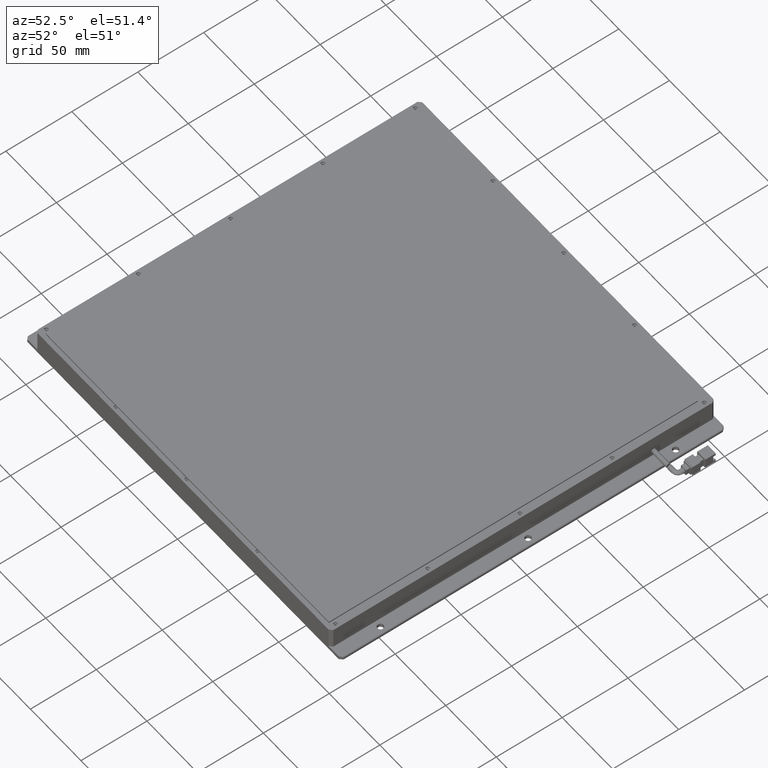
[diagram: clean part render]
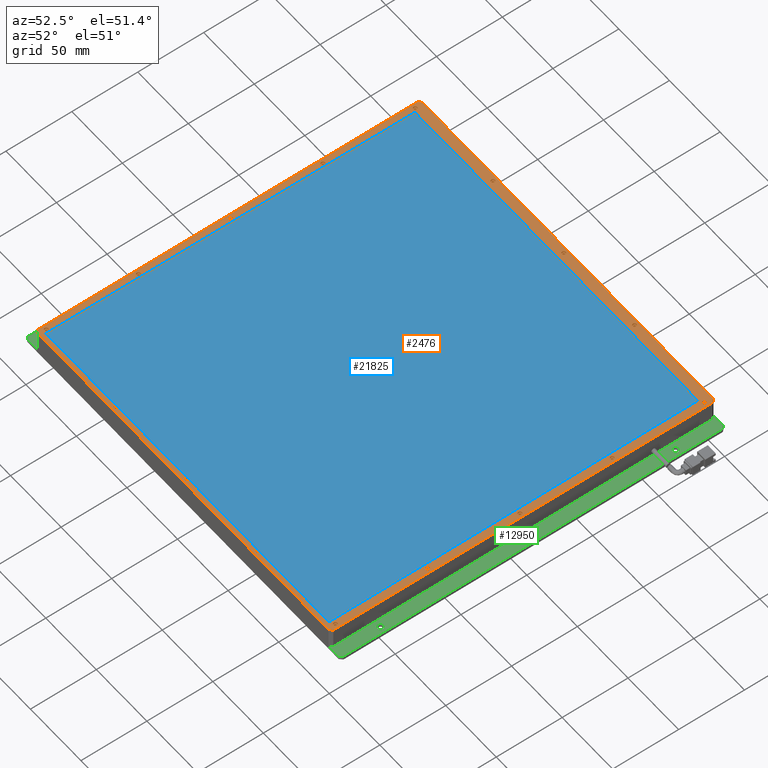
[diagram: same view with three faces highlighted in distinct colors, each labeled with its STEP entity id]
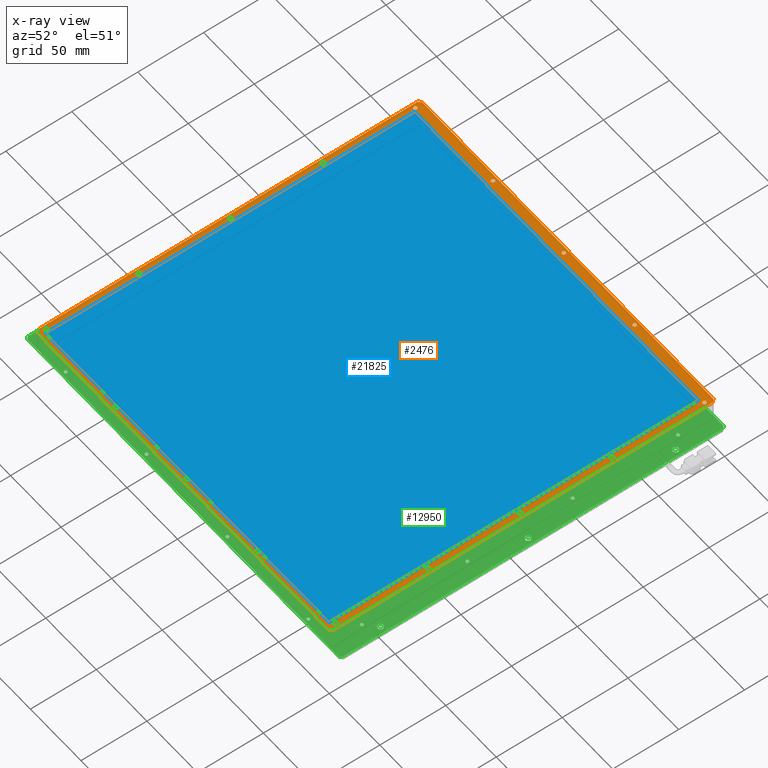
[diagram: x-ray of the same camera — body ghosted, the three highlighted faces saturated]
A machine part, auxiliary view with three faces highlighted in distinct colors.
The next image is the same camera in x-ray (body ghosted, the three faces saturated) — at least one of them is partly hidden behind the body in this view.
Their STEP definitions:

[orange] entity #2476 — the highlighted planar face has unit normal (0, 0, 1).
#131 = DIRECTION ( 'NONE',  ( -0.0000000000000000000, -0.0000000000000000000, -1.000000000000000000 ) ) ;
#176 = AXIS2_PLACEMENT_3D ( 'NONE', #21483, #4803, #17794 ) ;
#219 = DIRECTION ( 'NONE',  ( 0.7071067811865425800, 0.7071067811865525700, -0.0000000000000000000 ) ) ;
#286 = ORIENTED_EDGE ( 'NONE', *, *, #763, .T. ) ;
#357 = CIRCLE ( 'NONE', #4258, 1.399999999999984600 ) ;
#602 = VERTEX_POINT ( 'NONE', #12911 ) ;
#607 = AXIS2_PLACEMENT_3D ( 'NONE', #21781, #21713, #10738 ) ;
#616 = EDGE_CURVE ( 'NONE', #3807, #13412, #13700, .T. ) ;
#658 = CARTESIAN_POINT ( 'NONE',  ( -113.0806771263418400, -132.7301954307733900, 8.999999999971805700 ) ) ;
#763 = EDGE_CURVE ( 'NONE', #21903, #4094, #18566, .T. ) ;
#783 = DIRECTION ( 'NONE',  ( 1.000000000000000000, 0.0000000000000000000, 0.0000000000000000000 ) ) ;
#861 = CIRCLE ( 'NONE', #13068, 1.399999999999984600 ) ;
#890 = CARTESIAN_POINT ( 'NONE',  ( -111.4806771263418600, -56.73019543077345600, 8.999999999971805700 ) ) ;
#910 = EDGE_CURVE ( 'NONE', #17691, #17043, #1337, .T. ) ;
#929 = VERTEX_POINT ( 'NONE', #1438 ) ;
#932 = EDGE_CURVE ( 'NONE', #602, #10746, #10233, .T. ) ;
#1033 = FACE_BOUND ( 'NONE', #11235, .T. ) ;
#1103 = ORIENTED_EDGE ( 'NONE', *, *, #616, .T. ) ;
#1150 = CIRCLE ( 'NONE', #13182, 1.400000000000012300 ) ;
#1186 = ORIENTED_EDGE ( 'NONE', *, *, #4831, .T. ) ;
#1215 = DIRECTION ( 'NONE',  ( -0.0000000000000000000, -0.0000000000000000000, -1.000000000000000000 ) ) ;
#1257 = CIRCLE ( 'NONE', #13277, 1.399999999999984600 ) ;
#1299 = CARTESIAN_POINT ( 'NONE',  ( -110.0806771263418700, 153.2698045692265800, 8.999999999971805700 ) ) ;
#1319 = CARTESIAN_POINT ( 'NONE',  ( -110.0806771263418700, 13.26980456922655100, 8.999999999971805700 ) ) ;
#1337 = CIRCLE ( 'NONE', #176, 1.399999999999984600 ) ;
#1343 = DIRECTION ( 'NONE',  ( 1.000000000000000000, 0.0000000000000000000, 0.0000000000000000000 ) ) ;
#1395 = DIRECTION ( 'NONE',  ( -0.0000000000000000000, -0.0000000000000000000, -1.000000000000000000 ) ) ;
#1438 = CARTESIAN_POINT ( 'NONE',  ( -111.0806771263417500, 159.2698045692265800, 8.999999999971805700 ) ) ;
#1527 = VERTEX_POINT ( 'NONE', #4945 ) ;
#1565 = DIRECTION ( 'NONE',  ( 1.000000000000000000, 0.0000000000000000000, 0.0000000000000000000 ) ) ;
#1583 = VERTEX_POINT ( 'NONE', #18089 ) ;
#1662 = VERTEX_POINT ( 'NONE', #2206 ) ;
#1704 = LINE ( 'NONE', #22185, #15770 ) ;
#1718 = DIRECTION ( 'NONE',  ( -0.0000000000000000000, -0.0000000000000000000, -1.000000000000000000 ) ) ;
#1740 = EDGE_LOOP ( 'NONE', ( #19078, #21974 ) ) ;
#1778 = ORIENTED_EDGE ( 'NONE', *, *, #16651, .F. ) ;
#1783 = VERTEX_POINT ( 'NONE', #10315 ) ;
#1818 = EDGE_CURVE ( 'NONE', #2043, #9253, #14863, .T. ) ;
#1895 = DIRECTION ( 'NONE',  ( -0.0000000000000000000, -0.0000000000000000000, -1.000000000000000000 ) ) ;
#1910 = EDGE_CURVE ( 'NONE', #22057, #5927, #5978, .T. ) ;
#2043 = VERTEX_POINT ( 'NONE', #20530 ) ;
#2046 = CARTESIAN_POINT ( 'NONE',  ( 177.3193228736581400, 153.2698045692265800, 8.999999999971805700 ) ) ;
#2079 = ORIENTED_EDGE ( 'NONE', *, *, #5896, .T. ) ;
#2121 = CARTESIAN_POINT ( 'NONE',  ( -111.4806771263418600, -126.7301954307734600, 8.999999999971805700 ) ) ;
#2202 = CARTESIAN_POINT ( 'NONE',  ( -107.0806771263418400, -129.4312126789007200, 8.999999999971805700 ) ) ;
#2206 = CARTESIAN_POINT ( 'NONE',  ( 172.9193228736581900, -129.4312126789007200, 8.999999999971805700 ) ) ;
#2209 = CARTESIAN_POINT ( 'NONE',  ( -108.6806771263418900, 13.26980456922655100, 8.999999999971805700 ) ) ;
#2275 = DIRECTION ( 'NONE',  ( 1.000000000000000000, 0.0000000000000000000, 0.0000000000000000000 ) ) ;
#2331 = ORIENTED_EDGE ( 'NONE', *, *, #19148, .T. ) ;
#2383 = ORIENTED_EDGE ( 'NONE', *, *, #16642, .T. ) ;
#2410 = VERTEX_POINT ( 'NONE', #10677 ) ;
#2472 = FACE_BOUND ( 'NONE', #11643, .T. ) ;
#2476 = ADVANCED_FACE ( 'NONE', ( #9653, #5629, #14799, #3608, #4758, #22630, #14775, #17080, #11634, #1033, #2472, #9336, #15661, #13346, #6776 ), #21975, .T. ) ;
#2506 = DIRECTION ( 'NONE',  ( -0.0000000000000000000, -0.0000000000000000000, -1.000000000000000000 ) ) ;
#2550 = AXIS2_PLACEMENT_3D ( 'NONE', #14542, #23708, #1565 ) ;
#2578 = CARTESIAN_POINT ( 'NONE',  ( -110.0806771263418700, -126.7301954307734600, 8.999999999971805700 ) ) ;
#2580 = DIRECTION ( 'NONE',  ( 1.000000000000000000, 0.0000000000000000000, 0.0000000000000000000 ) ) ;
#2822 = VERTEX_POINT ( 'NONE', #7869 ) ;
#2894 = ORIENTED_EDGE ( 'NONE', *, *, #17637, .T. ) ;
#2904 = CARTESIAN_POINT ( 'NONE',  ( -37.08067712634193200, -129.7301954307734500, 8.999999999971805700 ) ) ;
#2916 = ORIENTED_EDGE ( 'NONE', *, *, #17865, .T. ) ;
#2935 = AXIS2_PLACEMENT_3D ( 'NONE', #4114, #20670, #22554 ) ;
#2981 = EDGE_LOOP ( 'NONE', ( #9232, #1103, #3261, #15184, #2894, #18738, #21902, #1186 ) ) ;
#3039 = CARTESIAN_POINT ( 'NONE',  ( -37.08067712634193200, -129.7301954307734500, 8.999999999971805700 ) ) ;
#3189 = DIRECTION ( 'NONE',  ( -0.0000000000000000000, -1.000000000000000000, -0.0000000000000000000 ) ) ;
#3214 = CARTESIAN_POINT ( 'NONE',  ( 102.9193228736581000, -129.7301954307734500, 8.999999999971805700 ) ) ;
#3219 = EDGE_CURVE ( 'NONE', #12204, #4992, #18147, .T. ) ;
#3261 = ORIENTED_EDGE ( 'NONE', *, *, #8837, .T. ) ;
#3357 = ORIENTED_EDGE ( 'NONE', *, *, #22952, .F. ) ;
#3415 = LINE ( 'NONE', #22371, #23591 ) ;
#3425 = LINE ( 'NONE', #12841, #15767 ) ;
#3519 = ORIENTED_EDGE ( 'NONE', *, *, #910, .T. ) ;
#3573 = DIRECTION ( 'NONE',  ( 1.000000000000000000, 0.0000000000000000000, 0.0000000000000000000 ) ) ;
#3608 = FACE_BOUND ( 'NONE', #16521, .T. ) ;
#3654 = DIRECTION ( 'NONE',  ( -0.0000000000000000000, -0.0000000000000000000, -1.000000000000000000 ) ) ;
#3740 = EDGE_CURVE ( 'NONE', #929, #4064, #13531, .T. ) ;
#3772 = VERTEX_POINT ( 'NONE', #13694 ) ;
#3803 = CARTESIAN_POINT ( 'NONE',  ( 32.91932287365807500, -129.7301954307734500, 8.999999999971805700 ) ) ;
#3807 = VERTEX_POINT ( 'NONE', #19174 ) ;
#3892 = DIRECTION ( 'NONE',  ( 1.000000000000000000, 0.0000000000000000000, 0.0000000000000000000 ) ) ;
#3898 = ORIENTED_EDGE ( 'NONE', *, *, #14096, .F. ) ;
#3953 = CARTESIAN_POINT ( 'NONE',  ( -110.0806771263418700, 153.2698045692265800, 8.999999999971805700 ) ) ;
#4032 = VECTOR ( 'NONE', #13461, 1000.000000000000000 ) ;
#4056 = ORIENTED_EDGE ( 'NONE', *, *, #19185, .F. ) ;
#4064 = VERTEX_POINT ( 'NONE', #19897 ) ;
#4094 = VERTEX_POINT ( 'NONE', #2209 ) ;
#4110 = DIRECTION ( 'NONE',  ( 1.000000000000000000, 0.0000000000000000000, 0.0000000000000000000 ) ) ;
#4114 = CARTESIAN_POINT ( 'NONE',  ( 175.9193228736581600, 13.26980456922655100, 8.999999999971805700 ) ) ;
#4116 = ORIENTED_EDGE ( 'NONE', *, *, #3219, .T. ) ;
#4167 = CARTESIAN_POINT ( 'NONE',  ( 102.9193228736581500, 156.2698045692266100, 8.999999999971805700 ) ) ;
#4171 = LINE ( 'NONE', #23677, #12497 ) ;
#4258 = AXIS2_PLACEMENT_3D ( 'NONE', #12975, #11068, #22346 ) ;
#4310 = AXIS2_PLACEMENT_3D ( 'NONE', #2904, #1215, #10359 ) ;
#4454 = EDGE_CURVE ( 'NONE', #8365, #2410, #20724, .T. ) ;
#4455 = AXIS2_PLACEMENT_3D ( 'NONE', #12471, #1395, #8855 ) ;
#4680 = EDGE_LOOP ( 'NONE', ( #22931, #7452 ) ) ;
#4690 = EDGE_CURVE ( 'NONE', #6996, #2043, #861, .T. ) ;
#4700 = EDGE_LOOP ( 'NONE', ( #17510, #2916 ) ) ;
#4758 = FACE_BOUND ( 'NONE', #17836, .T. ) ;
#4803 = DIRECTION ( 'NONE',  ( -0.0000000000000000000, -0.0000000000000000000, -1.000000000000000000 ) ) ;
#4831 = EDGE_CURVE ( 'NONE', #2410, #15739, #1704, .T. ) ;
#4849 = VERTEX_POINT ( 'NONE', #11152 ) ;
#4871 = ORIENTED_EDGE ( 'NONE', *, *, #13103, .T. ) ;
#4904 = CARTESIAN_POINT ( 'NONE',  ( 174.5193228736581800, 13.26980456922655100, 8.999999999971805700 ) ) ;
#4945 = CARTESIAN_POINT ( 'NONE',  ( 177.3193228736581100, -126.7301954307734600, 8.999999999971805700 ) ) ;
#4992 = VERTEX_POINT ( 'NONE', #20740 ) ;
#5026 = DIRECTION ( 'NONE',  ( 1.000000000000000000, 0.0000000000000000000, 0.0000000000000000000 ) ) ;
#5093 = CARTESIAN_POINT ( 'NONE',  ( -107.0806771263418400, -129.4312126789007200, 8.999999999971805700 ) ) ;
#5137 = DIRECTION ( 'NONE',  ( 1.000000000000000000, 0.0000000000000000000, 0.0000000000000000000 ) ) ;
#5453 = DIRECTION ( 'NONE',  ( -0.7071067811865474600, 0.7071067811865474600, -0.0000000000000000000 ) ) ;
#5540 = CIRCLE ( 'NONE', #12518, 1.399999999999984600 ) ;
#5576 = CARTESIAN_POINT ( 'NONE',  ( -108.6806771263418900, -126.7301954307734600, 8.999999999971805700 ) ) ;
#5629 = FACE_OUTER_BOUND ( 'NONE', #2981, .T. ) ;
#5780 = CARTESIAN_POINT ( 'NONE',  ( 176.9193228736581600, 159.2698045692265800, 8.999999999971805700 ) ) ;
#5815 = AXIS2_PLACEMENT_3D ( 'NONE', #6454, #11645, #23045 ) ;
#5896 = EDGE_CURVE ( 'NONE', #17043, #17691, #18235, .T. ) ;
#5927 = VERTEX_POINT ( 'NONE', #14231 ) ;
#5978 = CIRCLE ( 'NONE', #2550, 1.399999999999984600 ) ;
#6046 = CARTESIAN_POINT ( 'NONE',  ( -108.6806771263418900, 83.26980456922656500, 8.999999999971805700 ) ) ;
#6093 = DIRECTION ( 'NONE',  ( 1.000000000000000000, 0.0000000000000000000, 0.0000000000000000000 ) ) ;
#6118 = AXIS2_PLACEMENT_3D ( 'NONE', #8479, #17704, #6725 ) ;
#6135 = VERTEX_POINT ( 'NONE', #2121 ) ;
#6169 = LINE ( 'NONE', #10498, #9307 ) ;
#6183 = ORIENTED_EDGE ( 'NONE', *, *, #10146, .T. ) ;
#6291 = CIRCLE ( 'NONE', #16248, 1.399999999999984600 ) ;
#6347 = DIRECTION ( 'NONE',  ( 1.000000000000000000, 0.0000000000000000000, 0.0000000000000000000 ) ) ;
#6454 = CARTESIAN_POINT ( 'NONE',  ( -37.08067712634187500, 156.2698045692266100, 8.999999999971805700 ) ) ;
#6475 = CARTESIAN_POINT ( 'NONE',  ( -107.0806771263418400, -129.4312126789007200, 8.999999999971805700 ) ) ;
#6480 = ORIENTED_EDGE ( 'NONE', *, *, #8253, .T. ) ;
#6535 = CIRCLE ( 'NONE', #4310, 1.399999999999984600 ) ;
#6549 = DIRECTION ( 'NONE',  ( 1.000000000000000000, 0.0000000000000000000, 0.0000000000000000000 ) ) ;
#6579 = VERTEX_POINT ( 'NONE', #13004 ) ;
#6725 = DIRECTION ( 'NONE',  ( 1.000000000000000000, 0.0000000000000000000, 0.0000000000000000000 ) ) ;
#6742 = ORIENTED_EDGE ( 'NONE', *, *, #1910, .T. ) ;
#6761 = VERTEX_POINT ( 'NONE', #9627 ) ;
#6776 = FACE_BOUND ( 'NONE', #17641, .T. ) ;
#6780 = CARTESIAN_POINT ( 'NONE',  ( -107.0806771263418400, 150.5687873210993100, 8.999999999971805700 ) ) ;
#6801 = DIRECTION ( 'NONE',  ( -0.0000000000000000000, -0.0000000000000000000, -1.000000000000000000 ) ) ;
#6823 = DIRECTION ( 'NONE',  ( -0.0000000000000000000, -0.0000000000000000000, -1.000000000000000000 ) ) ;
#6845 = DIRECTION ( 'NONE',  ( -0.0000000000000000000, -0.0000000000000000000, -1.000000000000000000 ) ) ;
#6894 = AXIS2_PLACEMENT_3D ( 'NONE', #18014, #1718, #23712 ) ;
#6908 = ORIENTED_EDGE ( 'NONE', *, *, #1818, .T. ) ;
#6954 = ORIENTED_EDGE ( 'NONE', *, *, #7575, .F. ) ;
#6996 = VERTEX_POINT ( 'NONE', #23119 ) ;
#7031 = DIRECTION ( 'NONE',  ( -1.000000000000000000, -0.0000000000000000000, -0.0000000000000000000 ) ) ;
#7190 = LINE ( 'NONE', #19739, #10347 ) ;
#7193 = EDGE_CURVE ( 'NONE', #1527, #17533, #357, .T. ) ;
#7265 = AXIS2_PLACEMENT_3D ( 'NONE', #22624, #2506, #2580 ) ;
#7286 = AXIS2_PLACEMENT_3D ( 'NONE', #15094, #7658, #3892 ) ;
#7296 = ORIENTED_EDGE ( 'NONE', *, *, #23720, .T. ) ;
#7365 = EDGE_LOOP ( 'NONE', ( #6480, #6742 ) ) ;
#7388 = CARTESIAN_POINT ( 'NONE',  ( 175.9193228736581300, -56.73019543077345600, 8.999999999971805700 ) ) ;
#7401 = CIRCLE ( 'NONE', #16457, 1.399999999999984600 ) ;
#7446 = DIRECTION ( 'NONE',  ( -0.0000000000000000000, -0.0000000000000000000, -1.000000000000000000 ) ) ;
#7452 = ORIENTED_EDGE ( 'NONE', *, *, #15295, .T. ) ;
#7575 = EDGE_CURVE ( 'NONE', #10428, #14925, #22542, .T. ) ;
#7652 = DIRECTION ( 'NONE',  ( -1.000000000000000000, -0.0000000000000000000, -0.0000000000000000000 ) ) ;
#7658 = DIRECTION ( 'NONE',  ( -0.0000000000000000000, -0.0000000000000000000, -1.000000000000000000 ) ) ;
#7729 = LINE ( 'NONE', #6475, #13414 ) ;
#7735 = EDGE_CURVE ( 'NONE', #17533, #1527, #14693, .T. ) ;
#7784 = CIRCLE ( 'NONE', #11800, 1.399999999999984600 ) ;
#7788 = EDGE_CURVE ( 'NONE', #13276, #19309, #22192, .T. ) ;
#7869 = CARTESIAN_POINT ( 'NONE',  ( -108.6806771263418900, 153.2698045692265800, 8.999999999971805700 ) ) ;
#7909 = AXIS2_PLACEMENT_3D ( 'NONE', #9273, #1895, #14867 ) ;
#8160 = CARTESIAN_POINT ( 'NONE',  ( -111.0806771263418700, -132.7301954307733900, 8.999999999971805700 ) ) ;
#8189 = VERTEX_POINT ( 'NONE', #6780 ) ;
#8226 = DIRECTION ( 'NONE',  ( 1.000000000000000000, 0.0000000000000000000, 0.0000000000000000000 ) ) ;
#8253 = EDGE_CURVE ( 'NONE', #5927, #22057, #10902, .T. ) ;
#8365 = VERTEX_POINT ( 'NONE', #8160 ) ;
#8479 = CARTESIAN_POINT ( 'NONE',  ( 102.9193228736581000, -129.7301954307734500, 8.999999999971805700 ) ) ;
#8539 = LINE ( 'NONE', #16702, #19168 ) ;
#8613 = ORIENTED_EDGE ( 'NONE', *, *, #21818, .F. ) ;
#8700 = EDGE_CURVE ( 'NONE', #6579, #11169, #18022, .T. ) ;
#8717 = CARTESIAN_POINT ( 'NONE',  ( -110.0806771263418700, -56.73019543077345600, 8.999999999971805700 ) ) ;
#8822 = CARTESIAN_POINT ( 'NONE',  ( 32.91932287365807500, -129.7301954307734500, 8.999999999971805700 ) ) ;
#8837 = EDGE_CURVE ( 'NONE', #13412, #929, #8539, .T. ) ;
#8855 = DIRECTION ( 'NONE',  ( 1.000000000000000000, 0.0000000000000000000, 0.0000000000000000000 ) ) ;
#8865 = CIRCLE ( 'NONE', #4455, 1.399999999999984600 ) ;
#8877 = EDGE_CURVE ( 'NONE', #15571, #16527, #20328, .T. ) ;
#8923 = VERTEX_POINT ( 'NONE', #11655 ) ;
#8945 = LINE ( 'NONE', #10871, #21348 ) ;
#8958 = VERTEX_POINT ( 'NONE', #6046 ) ;
#9114 = VERTEX_POINT ( 'NONE', #4904 ) ;
#9124 = CARTESIAN_POINT ( 'NONE',  ( 178.9193228736581000, -130.7301954307734200, 8.999999999971805700 ) ) ;
#9146 = EDGE_CURVE ( 'NONE', #12318, #8958, #23201, .T. ) ;
#9204 = AXIS2_PLACEMENT_3D ( 'NONE', #15164, #11726, #9796 ) ;
#9220 = EDGE_CURVE ( 'NONE', #15739, #3807, #4171, .T. ) ;
#9227 = CARTESIAN_POINT ( 'NONE',  ( -113.0806771263418400, -132.7301954307733900, 8.999999999971805700 ) ) ;
#9232 = ORIENTED_EDGE ( 'NONE', *, *, #9220, .T. ) ;
#9253 = VERTEX_POINT ( 'NONE', #23459 ) ;
#9256 = DIRECTION ( 'NONE',  ( -0.0000000000000000000, -0.0000000000000000000, -1.000000000000000000 ) ) ;
#9273 = CARTESIAN_POINT ( 'NONE',  ( 102.9193228736581000, -129.7301954307734500, 8.999999999971805700 ) ) ;
#9307 = VECTOR ( 'NONE', #3189, 1000.000000000000000 ) ;
#9336 = FACE_BOUND ( 'NONE', #4700, .T. ) ;
#9352 = LINE ( 'NONE', #22771, #17094 ) ;
#9540 = ORIENTED_EDGE ( 'NONE', *, *, #21234, .T. ) ;
#9571 = EDGE_CURVE ( 'NONE', #14618, #6135, #14133, .T. ) ;
#9627 = CARTESIAN_POINT ( 'NONE',  ( -35.71297492407617800, -129.4312126789007200, 8.999999999971805700 ) ) ;
#9653 = FACE_BOUND ( 'NONE', #10690, .T. ) ;
#9680 = DIRECTION ( 'NONE',  ( -0.0000000000000000000, -0.0000000000000000000, -1.000000000000000000 ) ) ;
#9796 = DIRECTION ( 'NONE',  ( 1.000000000000000000, 0.0000000000000000000, 0.0000000000000000000 ) ) ;
#9845 = CARTESIAN_POINT ( 'NONE',  ( -38.48067712634191700, -129.7301954307734500, 8.999999999971805700 ) ) ;
#10107 = CARTESIAN_POINT ( 'NONE',  ( 102.9193228736581500, 156.2698045692266100, 8.999999999971805700 ) ) ;
#10146 = EDGE_CURVE ( 'NONE', #12687, #14104, #18679, .T. ) ;
#10204 = EDGE_CURVE ( 'NONE', #1783, #8365, #7190, .T. ) ;
#10233 = CIRCLE ( 'NONE', #12937, 1.399999999999984600 ) ;
#10245 = DIRECTION ( 'NONE',  ( -0.0000000000000000000, -1.000000000000000000, -0.0000000000000000000 ) ) ;
#10262 = VECTOR ( 'NONE', #5453, 1000.000000000000100 ) ;
#10315 = CARTESIAN_POINT ( 'NONE',  ( -113.0806771263418400, -130.7301954307733600, 8.999999999971805700 ) ) ;
#10345 = DIRECTION ( 'NONE',  ( 1.000000000000000000, 0.0000000000000000000, 0.0000000000000000000 ) ) ;
#10347 = VECTOR ( 'NONE', #10544, 1000.000000000000000 ) ;
#10359 = DIRECTION ( 'NONE',  ( 1.000000000000000000, 0.0000000000000000000, 0.0000000000000000000 ) ) ;
#10360 = EDGE_CURVE ( 'NONE', #19309, #13276, #11200, .T. ) ;
#10428 = VERTEX_POINT ( 'NONE', #2202 ) ;
#10459 = AXIS2_PLACEMENT_3D ( 'NONE', #18733, #11351, #14941 ) ;
#10498 = CARTESIAN_POINT ( 'NONE',  ( -107.0806771263418400, -129.4312126789007200, 8.999999999971805700 ) ) ;
#10526 = DIRECTION ( 'NONE',  ( 0.0000000000000000000, 1.000000000000000000, 0.0000000000000000000 ) ) ;
#10544 = DIRECTION ( 'NONE',  ( 0.7071067811865425800, -0.7071067811865525700, -0.0000000000000000000 ) ) ;
#10614 = CARTESIAN_POINT ( 'NONE',  ( -35.68067712634194800, -129.7301954307734500, 8.999999999971805700 ) ) ;
#10672 = CARTESIAN_POINT ( 'NONE',  ( 174.5193228736581800, 153.2698045692265800, 8.999999999971805700 ) ) ;
#10677 = CARTESIAN_POINT ( 'NONE',  ( 176.9193228736581600, -132.7301954307734200, 8.999999999971805700 ) ) ;
#10690 = EDGE_LOOP ( 'NONE', ( #20553, #9540, #6183, #10999, #6954, #3357, #4056, #1778, #8613, #10876, #6908, #2331, #3898, #23749, #4871, #22994 ) ) ;
#10738 = DIRECTION ( 'NONE',  ( 1.000000000000000000, 0.0000000000000000000, 0.0000000000000000000 ) ) ;
#10746 = VERTEX_POINT ( 'NONE', #19307 ) ;
#10762 = DIRECTION ( 'NONE',  ( 1.000000000000000000, 0.0000000000000000000, 0.0000000000000000000 ) ) ;
#10836 = CIRCLE ( 'NONE', #12428, 1.399999999999984600 ) ;
#10871 = CARTESIAN_POINT ( 'NONE',  ( -107.0806771263418400, 150.5687873210993100, 8.999999999971805700 ) ) ;
#10876 = ORIENTED_EDGE ( 'NONE', *, *, #4690, .T. ) ;
#10902 = CIRCLE ( 'NONE', #14756, 1.399999999999984600 ) ;
#10999 = ORIENTED_EDGE ( 'NONE', *, *, #22396, .T. ) ;
#11068 = DIRECTION ( 'NONE',  ( -0.0000000000000000000, -0.0000000000000000000, -1.000000000000000000 ) ) ;
#11078 = DIRECTION ( 'NONE',  ( 0.0000000000000000000, 0.0000000000000000000, 1.000000000000000000 ) ) ;
#11137 = CARTESIAN_POINT ( 'NONE',  ( 32.91932287365813200, 156.2698045692266100, 8.999999999971805700 ) ) ;
#11138 = CARTESIAN_POINT ( 'NONE',  ( -110.0806771263418700, 83.26980456922656500, 8.999999999971805700 ) ) ;
#11152 = CARTESIAN_POINT ( 'NONE',  ( 177.3193228736581400, 13.26980456922655100, 8.999999999971805700 ) ) ;
#11169 = VERTEX_POINT ( 'NONE', #16165 ) ;
#11200 = CIRCLE ( 'NONE', #7286, 1.399999999999984600 ) ;
#11235 = EDGE_LOOP ( 'NONE', ( #2383, #286 ) ) ;
#11344 = AXIS2_PLACEMENT_3D ( 'NONE', #12063, #17357, #8226 ) ;
#11351 = DIRECTION ( 'NONE',  ( -0.0000000000000000000, -0.0000000000000000000, -1.000000000000000000 ) ) ;
#11634 = FACE_BOUND ( 'NONE', #16707, .T. ) ;
#11643 = EDGE_LOOP ( 'NONE', ( #3519, #2079 ) ) ;
#11645 = DIRECTION ( 'NONE',  ( -0.0000000000000000000, -0.0000000000000000000, -1.000000000000000000 ) ) ;
#11655 = CARTESIAN_POINT ( 'NONE',  ( 174.5193228736581800, 83.26980456922656500, 8.999999999971805700 ) ) ;
#11676 = AXIS2_PLACEMENT_3D ( 'NONE', #11138, #131, #18435 ) ;
#11726 = DIRECTION ( 'NONE',  ( -0.0000000000000000000, -0.0000000000000000000, -1.000000000000000000 ) ) ;
#11800 = AXIS2_PLACEMENT_3D ( 'NONE', #3953, #16769, #18793 ) ;
#11863 = AXIS2_PLACEMENT_3D ( 'NONE', #16140, #17908, #5137 ) ;
#11950 = CARTESIAN_POINT ( 'NONE',  ( -113.0806771263418400, 157.2698045692265800, 8.999999999971805700 ) ) ;
#12025 = CARTESIAN_POINT ( 'NONE',  ( -38.48067712634186000, 156.2698045692266100, 8.999999999971805700 ) ) ;
#12033 = DIRECTION ( 'NONE',  ( 1.000000000000000000, 0.0000000000000000000, 0.0000000000000000000 ) ) ;
#12063 = CARTESIAN_POINT ( 'NONE',  ( -37.08067712634193200, -129.7301954307734500, 8.999999999971805700 ) ) ;
#12106 = ORIENTED_EDGE ( 'NONE', *, *, #15404, .T. ) ;
#12204 = VERTEX_POINT ( 'NONE', #12025 ) ;
#12301 = DIRECTION ( 'NONE',  ( 1.000000000000000000, 0.0000000000000000000, 0.0000000000000000000 ) ) ;
#12318 = VERTEX_POINT ( 'NONE', #19506 ) ;
#12352 = CARTESIAN_POINT ( 'NONE',  ( 177.3193228736581400, -56.73019543077345600, 8.999999999971805700 ) ) ;
#12363 = VERTEX_POINT ( 'NONE', #16407 ) ;
#12428 = AXIS2_PLACEMENT_3D ( 'NONE', #17003, #13451, #6347 ) ;
#12471 = CARTESIAN_POINT ( 'NONE',  ( 175.9193228736581600, 13.26980456922655100, 8.999999999971805700 ) ) ;
#12497 = VECTOR ( 'NONE', #19779, 1000.000000000000000 ) ;
#12518 = AXIS2_PLACEMENT_3D ( 'NONE', #10107, #19278, #21159 ) ;
#12675 = DIRECTION ( 'NONE',  ( -0.0000000000000000000, -0.0000000000000000000, -1.000000000000000000 ) ) ;
#12687 = VERTEX_POINT ( 'NONE', #10614 ) ;
#12712 = CARTESIAN_POINT ( 'NONE',  ( 104.3193228736581200, 156.2698045692266100, 8.999999999971805700 ) ) ;
#12831 = CIRCLE ( 'NONE', #2935, 1.399999999999984600 ) ;
#12841 = CARTESIAN_POINT ( 'NONE',  ( 172.9193228736581900, -129.4312126789007200, 8.999999999971805700 ) ) ;
#12911 = CARTESIAN_POINT ( 'NONE',  ( 34.28702507592382900, -129.4312126789007200, 8.999999999971805700 ) ) ;
#12937 = AXIS2_PLACEMENT_3D ( 'NONE', #8822, #6823, #10345 ) ;
#12944 = CIRCLE ( 'NONE', #11344, 1.399999999999984600 ) ;
#12975 = CARTESIAN_POINT ( 'NONE',  ( 175.9193228736581300, -126.7301954307734600, 8.999999999971805700 ) ) ;
#13004 = CARTESIAN_POINT ( 'NONE',  ( 31.51932287365809400, -129.7301954307734500, 8.999999999971805700 ) ) ;
#13026 = CARTESIAN_POINT ( 'NONE',  ( -110.0806771263418700, -126.7301954307734600, 8.999999999971805700 ) ) ;
#13068 = AXIS2_PLACEMENT_3D ( 'NONE', #3214, #16130, #18209 ) ;
#13103 = EDGE_CURVE ( 'NONE', #10746, #6579, #20120, .T. ) ;
#13182 = AXIS2_PLACEMENT_3D ( 'NONE', #7388, #12675, #10762 ) ;
#13276 = VERTEX_POINT ( 'NONE', #10672 ) ;
#13277 = AXIS2_PLACEMENT_3D ( 'NONE', #1299, #17799, #15715 ) ;
#13314 = ORIENTED_EDGE ( 'NONE', *, *, #15576, .T. ) ;
#13346 = FACE_BOUND ( 'NONE', #7365, .T. ) ;
#13365 = AXIS2_PLACEMENT_3D ( 'NONE', #4167, #9680, #783 ) ;
#13412 = VERTEX_POINT ( 'NONE', #20519 ) ;
#13414 = VECTOR ( 'NONE', #6549, 1000.000000000000000 ) ;
#13451 = DIRECTION ( 'NONE',  ( -0.0000000000000000000, -0.0000000000000000000, -1.000000000000000000 ) ) ;
#13461 = DIRECTION ( 'NONE',  ( 1.000000000000000000, -0.0000000000000000000, -0.0000000000000000000 ) ) ;
#13531 = LINE ( 'NONE', #11950, #19316 ) ;
#13534 = CIRCLE ( 'NONE', #607, 1.399999999999984600 ) ;
#13552 = EDGE_CURVE ( 'NONE', #9114, #4849, #12831, .T. ) ;
#13694 = CARTESIAN_POINT ( 'NONE',  ( 172.9193228736581900, 150.5687873210993100, 8.999999999971805700 ) ) ;
#13700 = LINE ( 'NONE', #5780, #10262 ) ;
#13704 = AXIS2_PLACEMENT_3D ( 'NONE', #2578, #23107, #12033 ) ;
#13761 = CARTESIAN_POINT ( 'NONE',  ( 174.5193228736581500, -126.7301954307734600, 8.999999999971805700 ) ) ;
#13852 = DIRECTION ( 'NONE',  ( -0.7071067811865474600, -0.7071067811865474600, -0.0000000000000000000 ) ) ;
#13910 = AXIS2_PLACEMENT_3D ( 'NONE', #9227, #11078, #21798 ) ;
#14096 = EDGE_CURVE ( 'NONE', #602, #17053, #9352, .T. ) ;
#14104 = VERTEX_POINT ( 'NONE', #9845 ) ;
#14133 = CIRCLE ( 'NONE', #13704, 1.399999999999984600 ) ;
#14145 = ORIENTED_EDGE ( 'NONE', *, *, #13552, .T. ) ;
#14199 = EDGE_CURVE ( 'NONE', #16085, #12363, #17675, .T. ) ;
#14213 = CARTESIAN_POINT ( 'NONE',  ( -38.44837932860767900, -129.4312126789007200, 8.999999999971805700 ) ) ;
#14231 = CARTESIAN_POINT ( 'NONE',  ( 34.31932287365811600, 156.2698045692266100, 8.999999999971805700 ) ) ;
#14233 = EDGE_LOOP ( 'NONE', ( #21036, #19777 ) ) ;
#14392 = CIRCLE ( 'NONE', #11676, 1.399999999999984600 ) ;
#14542 = CARTESIAN_POINT ( 'NONE',  ( 32.91932287365813200, 156.2698045692266100, 8.999999999971805700 ) ) ;
#14618 = VERTEX_POINT ( 'NONE', #5576 ) ;
#14693 = CIRCLE ( 'NONE', #6894, 1.399999999999984600 ) ;
#14725 = CARTESIAN_POINT ( 'NONE',  ( -111.4806771263418600, 153.2698045692265800, 8.999999999971805700 ) ) ;
#14756 = AXIS2_PLACEMENT_3D ( 'NONE', #11137, #7446, #22262 ) ;
#14775 = FACE_BOUND ( 'NONE', #21257, .T. ) ;
#14799 = FACE_BOUND ( 'NONE', #1740, .T. ) ;
#14861 = DIRECTION ( 'NONE',  ( 1.000000000000000000, 0.0000000000000000000, 0.0000000000000000000 ) ) ;
#14863 = CIRCLE ( 'NONE', #6118, 1.399999999999984600 ) ;
#14867 = DIRECTION ( 'NONE',  ( 1.000000000000000000, 0.0000000000000000000, 0.0000000000000000000 ) ) ;
#14925 = VERTEX_POINT ( 'NONE', #14213 ) ;
#14941 = DIRECTION ( 'NONE',  ( 1.000000000000000000, 0.0000000000000000000, 0.0000000000000000000 ) ) ;
#14985 = AXIS2_PLACEMENT_3D ( 'NONE', #17732, #21313, #21238 ) ;
#14992 = VECTOR ( 'NONE', #1343, 1000.000000000000000 ) ;
#15024 = CARTESIAN_POINT ( 'NONE',  ( 175.9193228736581300, -56.73019543077345600, 8.999999999971805700 ) ) ;
#15094 = CARTESIAN_POINT ( 'NONE',  ( 175.9193228736581600, 153.2698045692265800, 8.999999999971805700 ) ) ;
#15164 = CARTESIAN_POINT ( 'NONE',  ( 32.91932287365807500, -129.7301954307734500, 8.999999999971805700 ) ) ;
#15184 = ORIENTED_EDGE ( 'NONE', *, *, #3740, .T. ) ;
#15250 = AXIS2_PLACEMENT_3D ( 'NONE', #3039, #6801, #19666 ) ;
#15295 = EDGE_CURVE ( 'NONE', #12363, #16085, #5540, .T. ) ;
#15404 = EDGE_CURVE ( 'NONE', #2822, #23135, #1257, .T. ) ;
#15571 = VERTEX_POINT ( 'NONE', #12352 ) ;
#15576 = EDGE_CURVE ( 'NONE', #8923, #1583, #13534, .T. ) ;
#15661 = FACE_BOUND ( 'NONE', #4680, .T. ) ;
#15714 = EDGE_CURVE ( 'NONE', #8958, #12318, #14392, .T. ) ;
#15715 = DIRECTION ( 'NONE',  ( 1.000000000000000000, 0.0000000000000000000, 0.0000000000000000000 ) ) ;
#15739 = VERTEX_POINT ( 'NONE', #9124 ) ;
#15767 = VECTOR ( 'NONE', #10526, 1000.000000000000000 ) ;
#15770 = VECTOR ( 'NONE', #219, 1000.000000000000000 ) ;
#15790 = ORIENTED_EDGE ( 'NONE', *, *, #15714, .T. ) ;
#16070 = CARTESIAN_POINT ( 'NONE',  ( -111.4806771263418600, 13.26980456922655100, 8.999999999971805700 ) ) ;
#16085 = VERTEX_POINT ( 'NONE', #12712 ) ;
#16130 = DIRECTION ( 'NONE',  ( -0.0000000000000000000, -0.0000000000000000000, -1.000000000000000000 ) ) ;
#16140 = CARTESIAN_POINT ( 'NONE',  ( -110.0806771263418700, 83.26980456922656500, 8.999999999971805700 ) ) ;
#16165 = CARTESIAN_POINT ( 'NONE',  ( 31.55162067139232500, -129.4312126789007200, 8.999999999971805700 ) ) ;
#16248 = AXIS2_PLACEMENT_3D ( 'NONE', #1319, #6845, #12301 ) ;
#16291 = VECTOR ( 'NONE', #10245, 1000.000000000000000 ) ;
#16407 = CARTESIAN_POINT ( 'NONE',  ( 101.5193228736581500, 156.2698045692266100, 8.999999999971805700 ) ) ;
#16457 = AXIS2_PLACEMENT_3D ( 'NONE', #13026, #3654, #14861 ) ;
#16521 = EDGE_LOOP ( 'NONE', ( #17844, #13314 ) ) ;
#16527 = VERTEX_POINT ( 'NONE', #21117 ) ;
#16642 = EDGE_CURVE ( 'NONE', #4094, #21903, #6291, .T. ) ;
#16651 = EDGE_CURVE ( 'NONE', #1662, #3772, #3425, .T. ) ;
#16702 = CARTESIAN_POINT ( 'NONE',  ( -113.0806771263418400, 159.2698045692265800, 8.999999999971805700 ) ) ;
#16707 = EDGE_LOOP ( 'NONE', ( #15790, #23153 ) ) ;
#16769 = DIRECTION ( 'NONE',  ( -0.0000000000000000000, -0.0000000000000000000, -1.000000000000000000 ) ) ;
#16869 = EDGE_CURVE ( 'NONE', #1583, #8923, #10836, .T. ) ;
#17003 = CARTESIAN_POINT ( 'NONE',  ( 175.9193228736581600, 83.26980456922656500, 8.999999999971805700 ) ) ;
#17043 = VERTEX_POINT ( 'NONE', #890 ) ;
#17053 = VERTEX_POINT ( 'NONE', #21314 ) ;
#17080 = FACE_BOUND ( 'NONE', #19417, .T. ) ;
#17094 = VECTOR ( 'NONE', #6093, 1000.000000000000000 ) ;
#17357 = DIRECTION ( 'NONE',  ( -0.0000000000000000000, -0.0000000000000000000, -1.000000000000000000 ) ) ;
#17510 = ORIENTED_EDGE ( 'NONE', *, *, #9571, .T. ) ;
#17533 = VERTEX_POINT ( 'NONE', #13761 ) ;
#17637 = EDGE_CURVE ( 'NONE', #4064, #1783, #21816, .T. ) ;
#17641 = EDGE_LOOP ( 'NONE', ( #20649, #4116 ) ) ;
#17675 = CIRCLE ( 'NONE', #13365, 1.399999999999984600 ) ;
#17691 = VERTEX_POINT ( 'NONE', #19341 ) ;
#17704 = DIRECTION ( 'NONE',  ( -0.0000000000000000000, -0.0000000000000000000, -1.000000000000000000 ) ) ;
#17732 = CARTESIAN_POINT ( 'NONE',  ( -37.08067712634187500, 156.2698045692266100, 8.999999999971805700 ) ) ;
#17794 = DIRECTION ( 'NONE',  ( 1.000000000000000000, 0.0000000000000000000, 0.0000000000000000000 ) ) ;
#17799 = DIRECTION ( 'NONE',  ( -0.0000000000000000000, -0.0000000000000000000, -1.000000000000000000 ) ) ;
#17836 = EDGE_LOOP ( 'NONE', ( #20119, #14145 ) ) ;
#17844 = ORIENTED_EDGE ( 'NONE', *, *, #16869, .T. ) ;
#17865 = EDGE_CURVE ( 'NONE', #6135, #14618, #7401, .T. ) ;
#17908 = DIRECTION ( 'NONE',  ( -0.0000000000000000000, -0.0000000000000000000, -1.000000000000000000 ) ) ;
#18014 = CARTESIAN_POINT ( 'NONE',  ( 175.9193228736581300, -126.7301954307734600, 8.999999999971805700 ) ) ;
#18022 = CIRCLE ( 'NONE', #20972, 1.399999999999984600 ) ;
#18089 = CARTESIAN_POINT ( 'NONE',  ( 177.3193228736581400, 83.26980456922656500, 8.999999999971805700 ) ) ;
#18147 = CIRCLE ( 'NONE', #5815, 1.399999999999984600 ) ;
#18209 = DIRECTION ( 'NONE',  ( 1.000000000000000000, 0.0000000000000000000, 0.0000000000000000000 ) ) ;
#18235 = CIRCLE ( 'NONE', #20095, 1.399999999999984600 ) ;
#18435 = DIRECTION ( 'NONE',  ( 1.000000000000000000, 0.0000000000000000000, 0.0000000000000000000 ) ) ;
#18472 = CARTESIAN_POINT ( 'NONE',  ( 31.51932287365814700, 156.2698045692266100, 8.999999999971805700 ) ) ;
#18562 = DIRECTION ( 'NONE',  ( -0.0000000000000000000, -0.0000000000000000000, -1.000000000000000000 ) ) ;
#18566 = CIRCLE ( 'NONE', #7265, 1.399999999999984600 ) ;
#18679 = CIRCLE ( 'NONE', #15250, 1.399999999999984600 ) ;
#18721 = ORIENTED_EDGE ( 'NONE', *, *, #7735, .T. ) ;
#18733 = CARTESIAN_POINT ( 'NONE',  ( 175.9193228736581600, 153.2698045692265800, 8.999999999971805700 ) ) ;
#18738 = ORIENTED_EDGE ( 'NONE', *, *, #10204, .T. ) ;
#18793 = DIRECTION ( 'NONE',  ( 1.000000000000000000, 0.0000000000000000000, 0.0000000000000000000 ) ) ;
#19078 = ORIENTED_EDGE ( 'NONE', *, *, #10360, .T. ) ;
#19148 = EDGE_CURVE ( 'NONE', #9253, #17053, #21652, .T. ) ;
#19168 = VECTOR ( 'NONE', #7652, 1000.000000000000000 ) ;
#19174 = CARTESIAN_POINT ( 'NONE',  ( 178.9193228736581000, 157.2698045692266400, 8.999999999971805700 ) ) ;
#19185 = EDGE_CURVE ( 'NONE', #3772, #8189, #8945, .T. ) ;
#19278 = DIRECTION ( 'NONE',  ( -0.0000000000000000000, -0.0000000000000000000, -1.000000000000000000 ) ) ;
#19307 = CARTESIAN_POINT ( 'NONE',  ( 34.31932287365805900, -129.7301954307734500, 8.999999999971805700 ) ) ;
#19309 = VERTEX_POINT ( 'NONE', #2046 ) ;
#19316 = VECTOR ( 'NONE', #13852, 1000.000000000000100 ) ;
#19341 = CARTESIAN_POINT ( 'NONE',  ( -108.6806771263418900, -56.73019543077345600, 8.999999999971805700 ) ) ;
#19417 = EDGE_LOOP ( 'NONE', ( #12106, #7296 ) ) ;
#19506 = CARTESIAN_POINT ( 'NONE',  ( -111.4806771263418600, 83.26980456922656500, 8.999999999971805700 ) ) ;
#19666 = DIRECTION ( 'NONE',  ( 1.000000000000000000, 0.0000000000000000000, 0.0000000000000000000 ) ) ;
#19739 = CARTESIAN_POINT ( 'NONE',  ( -111.0806771263418700, -132.7301954307733900, 8.999999999971805700 ) ) ;
#19777 = ORIENTED_EDGE ( 'NONE', *, *, #21453, .T. ) ;
#19779 = DIRECTION ( 'NONE',  ( 0.0000000000000000000, 1.000000000000000000, 0.0000000000000000000 ) ) ;
#19897 = CARTESIAN_POINT ( 'NONE',  ( -113.0806771263418100, 157.2698045692265800, 8.999999999971805700 ) ) ;
#19924 = EDGE_CURVE ( 'NONE', #6761, #11169, #3415, .T. ) ;
#20067 = EDGE_CURVE ( 'NONE', #4992, #12204, #21582, .T. ) ;
#20095 = AXIS2_PLACEMENT_3D ( 'NONE', #8717, #21609, #5026 ) ;
#20119 = ORIENTED_EDGE ( 'NONE', *, *, #21968, .T. ) ;
#20120 = CIRCLE ( 'NONE', #9204, 1.399999999999984600 ) ;
#20328 = CIRCLE ( 'NONE', #22197, 1.400000000000012300 ) ;
#20519 = CARTESIAN_POINT ( 'NONE',  ( 176.9193228736581000, 159.2698045692266100, 8.999999999971805700 ) ) ;
#20530 = CARTESIAN_POINT ( 'NONE',  ( 104.3193228736580800, -129.7301954307734500, 8.999999999971805700 ) ) ;
#20553 = ORIENTED_EDGE ( 'NONE', *, *, #19924, .F. ) ;
#20649 = ORIENTED_EDGE ( 'NONE', *, *, #20067, .T. ) ;
#20670 = DIRECTION ( 'NONE',  ( -0.0000000000000000000, -0.0000000000000000000, -1.000000000000000000 ) ) ;
#20724 = LINE ( 'NONE', #658, #4032 ) ;
#20740 = CARTESIAN_POINT ( 'NONE',  ( -35.68067712634189100, 156.2698045692266100, 8.999999999971805700 ) ) ;
#20836 = ORIENTED_EDGE ( 'NONE', *, *, #7193, .T. ) ;
#20972 = AXIS2_PLACEMENT_3D ( 'NONE', #3803, #9256, #3573 ) ;
#21036 = ORIENTED_EDGE ( 'NONE', *, *, #8877, .T. ) ;
#21117 = CARTESIAN_POINT ( 'NONE',  ( 174.5193228736581300, -56.73019543077345600, 8.999999999971805700 ) ) ;
#21159 = DIRECTION ( 'NONE',  ( 1.000000000000000000, 0.0000000000000000000, 0.0000000000000000000 ) ) ;
#21234 = EDGE_CURVE ( 'NONE', #6761, #12687, #12944, .T. ) ;
#21238 = DIRECTION ( 'NONE',  ( 1.000000000000000000, 0.0000000000000000000, 0.0000000000000000000 ) ) ;
#21257 = EDGE_LOOP ( 'NONE', ( #20836, #18721 ) ) ;
#21284 = CARTESIAN_POINT ( 'NONE',  ( -113.0806771263418400, 159.2698045692265800, 8.999999999971805700 ) ) ;
#21313 = DIRECTION ( 'NONE',  ( -0.0000000000000000000, -0.0000000000000000000, -1.000000000000000000 ) ) ;
#21314 = CARTESIAN_POINT ( 'NONE',  ( 101.5516206713923600, -129.4312126789007200, 8.999999999971805700 ) ) ;
#21348 = VECTOR ( 'NONE', #7031, 1000.000000000000000 ) ;
#21453 = EDGE_CURVE ( 'NONE', #16527, #15571, #1150, .T. ) ;
#21483 = CARTESIAN_POINT ( 'NONE',  ( -110.0806771263418700, -56.73019543077345600, 8.999999999971805700 ) ) ;
#21582 = CIRCLE ( 'NONE', #14985, 1.399999999999984600 ) ;
#21609 = DIRECTION ( 'NONE',  ( -0.0000000000000000000, -0.0000000000000000000, -1.000000000000000000 ) ) ;
#21652 = CIRCLE ( 'NONE', #7909, 1.399999999999984600 ) ;
#21713 = DIRECTION ( 'NONE',  ( -0.0000000000000000000, -0.0000000000000000000, -1.000000000000000000 ) ) ;
#21781 = CARTESIAN_POINT ( 'NONE',  ( 175.9193228736581600, 83.26980456922656500, 8.999999999971805700 ) ) ;
#21798 = DIRECTION ( 'NONE',  ( 1.000000000000000000, 0.0000000000000000000, 0.0000000000000000000 ) ) ;
#21816 = LINE ( 'NONE', #21284, #16291 ) ;
#21818 = EDGE_CURVE ( 'NONE', #6996, #1662, #7729, .T. ) ;
#21902 = ORIENTED_EDGE ( 'NONE', *, *, #4454, .T. ) ;
#21903 = VERTEX_POINT ( 'NONE', #16070 ) ;
#21968 = EDGE_CURVE ( 'NONE', #4849, #9114, #8865, .T. ) ;
#21974 = ORIENTED_EDGE ( 'NONE', *, *, #7788, .T. ) ;
#21975 = PLANE ( 'NONE',  #13910 ) ;
#22057 = VERTEX_POINT ( 'NONE', #18472 ) ;
#22185 = CARTESIAN_POINT ( 'NONE',  ( 178.9193228736581300, -130.7301954307733600, 8.999999999971805700 ) ) ;
#22192 = CIRCLE ( 'NONE', #10459, 1.399999999999984600 ) ;
#22197 = AXIS2_PLACEMENT_3D ( 'NONE', #15024, #18562, #2275 ) ;
#22262 = DIRECTION ( 'NONE',  ( 1.000000000000000000, 0.0000000000000000000, 0.0000000000000000000 ) ) ;
#22346 = DIRECTION ( 'NONE',  ( 1.000000000000000000, 0.0000000000000000000, 0.0000000000000000000 ) ) ;
#22371 = CARTESIAN_POINT ( 'NONE',  ( -107.0806771263418400, -129.4312126789007200, 8.999999999971805700 ) ) ;
#22396 = EDGE_CURVE ( 'NONE', #14104, #14925, #6535, .T. ) ;
#22542 = LINE ( 'NONE', #5093, #14992 ) ;
#22554 = DIRECTION ( 'NONE',  ( 1.000000000000000000, 0.0000000000000000000, 0.0000000000000000000 ) ) ;
#22624 = CARTESIAN_POINT ( 'NONE',  ( -110.0806771263418700, 13.26980456922655100, 8.999999999971805700 ) ) ;
#22630 = FACE_BOUND ( 'NONE', #14233, .T. ) ;
#22771 = CARTESIAN_POINT ( 'NONE',  ( -107.0806771263418400, -129.4312126789007200, 8.999999999971805700 ) ) ;
#22931 = ORIENTED_EDGE ( 'NONE', *, *, #14199, .T. ) ;
#22952 = EDGE_CURVE ( 'NONE', #8189, #10428, #6169, .T. ) ;
#22994 = ORIENTED_EDGE ( 'NONE', *, *, #8700, .T. ) ;
#23045 = DIRECTION ( 'NONE',  ( 1.000000000000000000, 0.0000000000000000000, 0.0000000000000000000 ) ) ;
#23107 = DIRECTION ( 'NONE',  ( -0.0000000000000000000, -0.0000000000000000000, -1.000000000000000000 ) ) ;
#23119 = CARTESIAN_POINT ( 'NONE',  ( 104.2870250759238400, -129.4312126789007200, 8.999999999971805700 ) ) ;
#23135 = VERTEX_POINT ( 'NONE', #14725 ) ;
#23153 = ORIENTED_EDGE ( 'NONE', *, *, #9146, .T. ) ;
#23201 = CIRCLE ( 'NONE', #11863, 1.399999999999984600 ) ;
#23459 = CARTESIAN_POINT ( 'NONE',  ( 101.5193228736581100, -129.7301954307734500, 8.999999999971805700 ) ) ;
#23591 = VECTOR ( 'NONE', #4110, 1000.000000000000000 ) ;
#23677 = CARTESIAN_POINT ( 'NONE',  ( 178.9193228736581300, 159.2698045692265800, 8.999999999971805700 ) ) ;
#23708 = DIRECTION ( 'NONE',  ( -0.0000000000000000000, -0.0000000000000000000, -1.000000000000000000 ) ) ;
#23712 = DIRECTION ( 'NONE',  ( 1.000000000000000000, 0.0000000000000000000, 0.0000000000000000000 ) ) ;
#23720 = EDGE_CURVE ( 'NONE', #23135, #2822, #7784, .T. ) ;
#23749 = ORIENTED_EDGE ( 'NONE', *, *, #932, .T. ) ;

[blue] entity #21825 — the highlighted planar face has unit normal (0, 0, -1).
#401 = CARTESIAN_POINT ( 'NONE',  ( 172.9193228736581900, -129.4312126789007200, 9.999999999971805700 ) ) ;
#1272 = ORIENTED_EDGE ( 'NONE', *, *, #7050, .T. ) ;
#2889 = VERTEX_POINT ( 'NONE', #8265 ) ;
#3143 = LINE ( 'NONE', #15638, #11461 ) ;
#3295 = LINE ( 'NONE', #23259, #7602 ) ;
#4158 = CARTESIAN_POINT ( 'NONE',  ( -107.0806771263418400, 150.5687873210993100, 9.999999999971805700 ) ) ;
#7050 = EDGE_CURVE ( 'NONE', #11920, #8369, #18480, .T. ) ;
#7602 = VECTOR ( 'NONE', #10549, 1000.000000000000000 ) ;
#8265 = CARTESIAN_POINT ( 'NONE',  ( 172.9193228736581900, -129.4312126789007200, 9.999999999971805700 ) ) ;
#8350 = CARTESIAN_POINT ( 'NONE',  ( -107.0806771263418400, 150.5687873210993100, 9.999999999971805700 ) ) ;
#8369 = VERTEX_POINT ( 'NONE', #4158 ) ;
#8449 = VECTOR ( 'NONE', #15888, 1000.000000000000000 ) ;
#8537 = DIRECTION ( 'NONE',  ( -1.000000000000000000, 0.0000000000000000000, -0.0000000000000000000 ) ) ;
#9423 = EDGE_CURVE ( 'NONE', #2889, #11920, #15899, .T. ) ;
#10549 = DIRECTION ( 'NONE',  ( 1.000000000000000000, 0.0000000000000000000, 0.0000000000000000000 ) ) ;
#11352 = VERTEX_POINT ( 'NONE', #18303 ) ;
#11461 = VECTOR ( 'NONE', #13868, 1000.000000000000000 ) ;
#11920 = VERTEX_POINT ( 'NONE', #22278 ) ;
#13868 = DIRECTION ( 'NONE',  ( -0.0000000000000000000, -1.000000000000000000, -0.0000000000000000000 ) ) ;
#14453 = EDGE_CURVE ( 'NONE', #11352, #2889, #3295, .T. ) ;
#14729 = VECTOR ( 'NONE', #17152, 1000.000000000000000 ) ;
#15147 = FACE_OUTER_BOUND ( 'NONE', #17260, .T. ) ;
#15638 = CARTESIAN_POINT ( 'NONE',  ( -107.0806771263418400, -129.4312126789007200, 9.999999999971805700 ) ) ;
#15888 = DIRECTION ( 'NONE',  ( -1.000000000000000000, -0.0000000000000000000, -0.0000000000000000000 ) ) ;
#15899 = LINE ( 'NONE', #401, #14729 ) ;
#17152 = DIRECTION ( 'NONE',  ( 0.0000000000000000000, 1.000000000000000000, 0.0000000000000000000 ) ) ;
#17260 = EDGE_LOOP ( 'NONE', ( #23884, #1272, #21616, #20189 ) ) ;
#17602 = PLANE ( 'NONE',  #21421 ) ;
#18303 = CARTESIAN_POINT ( 'NONE',  ( -107.0806771263418400, -129.4312126789007200, 9.999999999971805700 ) ) ;
#18480 = LINE ( 'NONE', #8350, #8449 ) ;
#19224 = DIRECTION ( 'NONE',  ( 0.0000000000000000000, 0.0000000000000000000, -1.000000000000000000 ) ) ;
#20189 = ORIENTED_EDGE ( 'NONE', *, *, #14453, .T. ) ;
#20192 = EDGE_CURVE ( 'NONE', #8369, #11352, #3143, .T. ) ;
#21421 = AXIS2_PLACEMENT_3D ( 'NONE', #23240, #19224, #8537 ) ;
#21616 = ORIENTED_EDGE ( 'NONE', *, *, #20192, .T. ) ;
#21825 = ADVANCED_FACE ( 'NONE', ( #15147 ), #17602, .F. ) ;
#22278 = CARTESIAN_POINT ( 'NONE',  ( 172.9193228736581900, 150.5687873210993100, 9.999999999971805700 ) ) ;
#23240 = CARTESIAN_POINT ( 'NONE',  ( 0.0000000000000000000, 0.0000000000000000000, 9.999999999971805700 ) ) ;
#23259 = CARTESIAN_POINT ( 'NONE',  ( -107.0806771263418400, -129.4312126789007200, 9.999999999971805700 ) ) ;
#23884 = ORIENTED_EDGE ( 'NONE', *, *, #9423, .T. ) ;

[green] entity #12950 — the highlighted planar face has unit normal (0, 0, -1).
#2 = VERTEX_POINT ( 'NONE', #15082 ) ;
#18 = CARTESIAN_POINT ( 'NONE',  ( 186.1693228736580700, -98.73019543077344900, -7.000000000028193400 ) ) ;
#50 = LINE ( 'NONE', #7120, #1794 ) ;
#172 = VERTEX_POINT ( 'NONE', #739 ) ;
#203 = AXIS2_PLACEMENT_3D ( 'NONE', #2868, #21140, #17380 ) ;
#282 = FACE_BOUND ( 'NONE', #22140, .T. ) ;
#317 = EDGE_LOOP ( 'NONE', ( #20834, #327 ) ) ;
#324 = DIRECTION ( 'NONE',  ( -0.0000000000000000000, -0.0000000000000000000, 1.000000000000000000 ) ) ;
#327 = ORIENTED_EDGE ( 'NONE', *, *, #5769, .F. ) ;
#336 = CIRCLE ( 'NONE', #16716, 1.199999999999978900 ) ;
#355 = EDGE_CURVE ( 'NONE', #16661, #5754, #4545, .T. ) ;
#408 = EDGE_CURVE ( 'NONE', #14958, #4691, #7998, .T. ) ;
#477 = VERTEX_POINT ( 'NONE', #16218 ) ;
#535 = CARTESIAN_POINT ( 'NONE',  ( -108.8806771263419200, 133.2698045692266100, -7.000000000028193400 ) ) ;
#566 = VERTEX_POINT ( 'NONE', #20352 ) ;
#594 = FACE_BOUND ( 'NONE', #877, .T. ) ;
#611 = CIRCLE ( 'NONE', #6687, 2.249999999999974200 ) ;
#660 = VERTEX_POINT ( 'NONE', #720 ) ;
#669 = DIRECTION ( 'NONE',  ( -0.0000000000000000000, -0.0000000000000000000, 1.000000000000000000 ) ) ;
#699 = DIRECTION ( 'NONE',  ( -1.000000000000000000, 0.0000000000000000000, 0.0000000000000000000 ) ) ;
#720 = CARTESIAN_POINT ( 'NONE',  ( 154.1193228736580400, -129.7301954307733600, -7.000000000028193400 ) ) ;
#739 = CARTESIAN_POINT ( 'NONE',  ( -120.3306771263419000, -98.73019543077346300, -7.000000000028193400 ) ) ;
#751 = CIRCLE ( 'NONE', #13589, 1.199999999999992600 ) ;
#867 = AXIS2_PLACEMENT_3D ( 'NONE', #18401, #11188, #16535 ) ;
#876 = VERTEX_POINT ( 'NONE', #15556 ) ;
#877 = EDGE_LOOP ( 'NONE', ( #14926, #9526 ) ) ;
#961 = ORIENTED_EDGE ( 'NONE', *, *, #7700, .F. ) ;
#1045 = AXIS2_PLACEMENT_3D ( 'NONE', #6052, #9658, #8053 ) ;
#1075 = CIRCLE ( 'NONE', #5123, 1.199999999999978900 ) ;
#1152 = ORIENTED_EDGE ( 'NONE', *, *, #13411, .F. ) ;
#1250 = CIRCLE ( 'NONE', #19816, 1.199999999999992600 ) ;
#1280 = ORIENTED_EDGE ( 'NONE', *, *, #20544, .F. ) ;
#1330 = CARTESIAN_POINT ( 'NONE',  ( 74.11932287365807800, 156.2698045692266400, -7.000000000028193400 ) ) ;
#1362 = DIRECTION ( 'NONE',  ( 0.7071067811865606700, -0.7071067811865344700, 0.0000000000000000000 ) ) ;
#1453 = FACE_BOUND ( 'NONE', #10617, .T. ) ;
#1577 = AXIS2_PLACEMENT_3D ( 'NONE', #10384, #10596, #23376 ) ;
#1649 = CARTESIAN_POINT ( 'NONE',  ( -111.2806771263419000, -106.7301954307733900, -7.000000000028193400 ) ) ;
#1656 = CARTESIAN_POINT ( 'NONE',  ( 151.7193228736580900, 156.2698045692266400, -7.000000000028193400 ) ) ;
#1658 = CARTESIAN_POINT ( 'NONE',  ( -110.0806771263419100, -26.73019543077340300, -7.000000000028193400 ) ) ;
#1669 = AXIS2_PLACEMENT_3D ( 'NONE', #17568, #23121, #10356 ) ;
#1678 = VERTEX_POINT ( 'NONE', #22236 ) ;
#1794 = VECTOR ( 'NONE', #1362, 1000.000000000000000 ) ;
#1795 = CIRCLE ( 'NONE', #4442, 1.199999999999992600 ) ;
#1901 = CIRCLE ( 'NONE', #1577, 2.249999999999974200 ) ;
#1948 = CARTESIAN_POINT ( 'NONE',  ( -123.0806771263419100, 159.2698045692266400, -7.000000000028194300 ) ) ;
#2019 = FACE_BOUND ( 'NONE', #2615, .T. ) ;
#2029 = VECTOR ( 'NONE', #6275, 1000.000000000000000 ) ;
#2058 = EDGE_CURVE ( 'NONE', #8683, #13757, #1075, .T. ) ;
#2124 = AXIS2_PLACEMENT_3D ( 'NONE', #20071, #16207, #5205 ) ;
#2261 = CIRCLE ( 'NONE', #15901, 2.249999999999974200 ) ;
#2268 = PLANE ( 'NONE',  #10127 ) ;
#2304 = CARTESIAN_POINT ( 'NONE',  ( -122.5806771263419100, 157.7698045692266400, -7.000000000028194300 ) ) ;
#2361 = CIRCLE ( 'NONE', #15143, 1.199999999999992600 ) ;
#2416 = EDGE_CURVE ( 'NONE', #16322, #566, #751, .T. ) ;
#2430 = ORIENTED_EDGE ( 'NONE', *, *, #10249, .F. ) ;
#2484 = CIRCLE ( 'NONE', #13844, 2.249999999999988000 ) ;
#2492 = CIRCLE ( 'NONE', #203, 1.199999999999992600 ) ;
#2494 = EDGE_CURVE ( 'NONE', #3872, #11253, #5606, .T. ) ;
#2565 = EDGE_CURVE ( 'NONE', #4848, #11705, #13625, .T. ) ;
#2615 = EDGE_LOOP ( 'NONE', ( #17599, #16319 ) ) ;
#2629 = DIRECTION ( 'NONE',  ( 0.0000000000000000000, 0.0000000000000000000, 1.000000000000000000 ) ) ;
#2683 = CIRCLE ( 'NONE', #13953, 1.199999999999978900 ) ;
#2688 = VERTEX_POINT ( 'NONE', #15068 ) ;
#2709 = CARTESIAN_POINT ( 'NONE',  ( 183.9193228736580700, -98.73019543077344900, -7.000000000028193400 ) ) ;
#2805 = CIRCLE ( 'NONE', #9691, 2.249999999999988000 ) ;
#2815 = ORIENTED_EDGE ( 'NONE', *, *, #10057, .F. ) ;
#2855 = LINE ( 'NONE', #18403, #11174 ) ;
#2868 = CARTESIAN_POINT ( 'NONE',  ( -110.0806771263419100, -26.73019543077340300, -7.000000000028193400 ) ) ;
#2933 = CARTESIAN_POINT ( 'NONE',  ( 183.9193228736580700, 125.2698045692265400, -7.000000000028193400 ) ) ;
#2934 = CIRCLE ( 'NONE', #19999, 1.199999999999978900 ) ;
#3145 = CARTESIAN_POINT ( 'NONE',  ( 177.1193228736580600, 53.26980456922658600, -7.000000000028193400 ) ) ;
#3155 = ORIENTED_EDGE ( 'NONE', *, *, #15051, .F. ) ;
#3279 = CARTESIAN_POINT ( 'NONE',  ( -110.0806771263419100, 53.26980456922658600, -7.000000000028193400 ) ) ;
#3297 = ORIENTED_EDGE ( 'NONE', *, *, #10982, .F. ) ;
#3306 = DIRECTION ( 'NONE',  ( 0.0000000000000000000, 0.0000000000000000000, 1.000000000000000000 ) ) ;
#3333 = CARTESIAN_POINT ( 'NONE',  ( 175.9193228736580700, -106.7301954307733900, -7.000000000028193400 ) ) ;
#3334 = DIRECTION ( 'NONE',  ( -1.000000000000000000, 0.0000000000000000000, 0.0000000000000000000 ) ) ;
#3352 = EDGE_CURVE ( 'NONE', #15238, #477, #19651, .T. ) ;
#3412 = AXIS2_PLACEMENT_3D ( 'NONE', #23335, #19806, #6654 ) ;
#3429 = CIRCLE ( 'NONE', #5883, 1.199999999999992600 ) ;
#3446 = FACE_OUTER_BOUND ( 'NONE', #19034, .T. ) ;
#3447 = EDGE_CURVE ( 'NONE', #14344, #6063, #4934, .T. ) ;
#3505 = EDGE_CURVE ( 'NONE', #16589, #7599, #2683, .T. ) ;
#3592 = CIRCLE ( 'NONE', #12838, 1.199999999999992600 ) ;
#3618 = VERTEX_POINT ( 'NONE', #20832 ) ;
#3629 = CARTESIAN_POINT ( 'NONE',  ( 152.9193228736580500, 156.2698045692266400, -7.000000000028193400 ) ) ;
#3637 = DIRECTION ( 'NONE',  ( -1.000000000000000000, 0.0000000000000000000, 0.0000000000000000000 ) ) ;
#3680 = DIRECTION ( 'NONE',  ( 0.0000000000000000000, 0.0000000000000000000, 1.000000000000000000 ) ) ;
#3700 = DIRECTION ( 'NONE',  ( 0.0000000000000000000, 0.0000000000000000000, 1.000000000000000000 ) ) ;
#3773 = DIRECTION ( 'NONE',  ( 0.0000000000000000000, 0.0000000000000000000, 1.000000000000000000 ) ) ;
#3779 = EDGE_CURVE ( 'NONE', #15100, #660, #2934, .T. ) ;
#3852 = CARTESIAN_POINT ( 'NONE',  ( 177.1193228736580600, 133.2698045692266100, -7.000000000028193400 ) ) ;
#3872 = VERTEX_POINT ( 'NONE', #6961 ) ;
#3887 = CARTESIAN_POINT ( 'NONE',  ( -118.0806771263419100, 125.2698045692265900, -7.000000000028193400 ) ) ;
#3959 = EDGE_CURVE ( 'NONE', #876, #19581, #4082, .T. ) ;
#3970 = DIRECTION ( 'NONE',  ( -0.7071067811865474600, -0.7071067811865474600, 0.0000000000000000000 ) ) ;
#4017 = EDGE_LOOP ( 'NONE', ( #1152, #18163 ) ) ;
#4028 = ORIENTED_EDGE ( 'NONE', *, *, #22017, .F. ) ;
#4082 = CIRCLE ( 'NONE', #19552, 1.199999999999992600 ) ;
#4156 = CIRCLE ( 'NONE', #3412, 2.249999999999988000 ) ;
#4216 = CARTESIAN_POINT ( 'NONE',  ( -85.88067712634190800, 156.2698045692266400, -7.000000000028193400 ) ) ;
#4265 = CARTESIAN_POINT ( 'NONE',  ( 188.4193228736579900, 159.2698045692266400, -7.000000000028194300 ) ) ;
#4273 = DIRECTION ( 'NONE',  ( -1.000000000000000000, 0.0000000000000000000, 0.0000000000000000000 ) ) ;
#4275 = CARTESIAN_POINT ( 'NONE',  ( -118.0806771263419100, 125.2698045692265900, -7.000000000028193400 ) ) ;
#4341 = ORIENTED_EDGE ( 'NONE', *, *, #16605, .F. ) ;
#4442 = AXIS2_PLACEMENT_3D ( 'NONE', #20122, #10627, #3334 ) ;
#4522 = EDGE_CURVE ( 'NONE', #20246, #8429, #12345, .T. ) ;
#4545 = CIRCLE ( 'NONE', #22697, 1.199999999999978900 ) ;
#4577 = ORIENTED_EDGE ( 'NONE', *, *, #10873, .F. ) ;
#4592 = DIRECTION ( 'NONE',  ( 0.0000000000000000000, 0.0000000000000000000, 1.000000000000000000 ) ) ;
#4602 = FACE_BOUND ( 'NONE', #15826, .T. ) ;
#4645 = DIRECTION ( 'NONE',  ( -1.000000000000000000, 0.0000000000000000000, 0.0000000000000000000 ) ) ;
#4691 = VERTEX_POINT ( 'NONE', #15817 ) ;
#4701 = EDGE_LOOP ( 'NONE', ( #2815, #8415 ) ) ;
#4793 = EDGE_CURVE ( 'NONE', #16465, #172, #23073, .T. ) ;
#4848 = VERTEX_POINT ( 'NONE', #3852 ) ;
#4877 = ORIENTED_EDGE ( 'NONE', *, *, #15585, .F. ) ;
#4934 = CIRCLE ( 'NONE', #2124, 1.199999999999992600 ) ;
#5066 = AXIS2_PLACEMENT_3D ( 'NONE', #11471, #324, #13153 ) ;
#5117 = CARTESIAN_POINT ( 'NONE',  ( 188.4193228736579900, 157.7698045692267200, -7.000000000028197900 ) ) ;
#5120 = EDGE_LOOP ( 'NONE', ( #20863, #20236 ) ) ;
#5123 = AXIS2_PLACEMENT_3D ( 'NONE', #22227, #18485, #4273 ) ;
#5188 = VERTEX_POINT ( 'NONE', #13614 ) ;
#5205 = DIRECTION ( 'NONE',  ( -1.000000000000000000, 0.0000000000000000000, 0.0000000000000000000 ) ) ;
#5264 = ORIENTED_EDGE ( 'NONE', *, *, #21420, .F. ) ;
#5345 = DIRECTION ( 'NONE',  ( -1.000000000000000000, 0.0000000000000000000, 0.0000000000000000000 ) ) ;
#5393 = CARTESIAN_POINT ( 'NONE',  ( -87.08067712634191100, 156.2698045692266400, -7.000000000028193400 ) ) ;
#5448 = DIRECTION ( 'NONE',  ( 0.0000000000000000000, 0.0000000000000000000, 1.000000000000000000 ) ) ;
#5496 = DIRECTION ( 'NONE',  ( -1.000000000000000000, 0.0000000000000000000, 0.0000000000000000000 ) ) ;
#5538 = DIRECTION ( 'NONE',  ( -0.7071067811865474600, 0.7071067811865474600, 0.0000000000000000000 ) ) ;
#5606 = LINE ( 'NONE', #23906, #21469 ) ;
#5635 = ORIENTED_EDGE ( 'NONE', *, *, #16502, .F. ) ;
#5641 = DIRECTION ( 'NONE',  ( -1.000000000000000000, 0.0000000000000000000, -0.0000000000000000000 ) ) ;
#5694 = DIRECTION ( 'NONE',  ( -1.000000000000000000, 0.0000000000000000000, 0.0000000000000000000 ) ) ;
#5734 = EDGE_CURVE ( 'NONE', #2688, #7883, #21198, .T. ) ;
#5754 = VERTEX_POINT ( 'NONE', #15852 ) ;
#5768 = CARTESIAN_POINT ( 'NONE',  ( -118.0806771263419100, -98.73019543077346300, -7.000000000028193400 ) ) ;
#5769 = EDGE_CURVE ( 'NONE', #19581, #876, #2492, .T. ) ;
#5883 = AXIS2_PLACEMENT_3D ( 'NONE', #5393, #12617, #12785 ) ;
#6035 = CIRCLE ( 'NONE', #7644, 2.249999999999974200 ) ;
#6052 = CARTESIAN_POINT ( 'NONE',  ( 152.9193228736580500, -129.7301954307733600, -7.000000000028193400 ) ) ;
#6063 = VERTEX_POINT ( 'NONE', #1649 ) ;
#6072 = DIRECTION ( 'NONE',  ( 1.000000000000000000, 0.0000000000000000000, 0.0000000000000000000 ) ) ;
#6156 = ORIENTED_EDGE ( 'NONE', *, *, #18258, .F. ) ;
#6275 = DIRECTION ( 'NONE',  ( -0.0000000000000000000, -1.000000000000000000, -0.0000000000000000000 ) ) ;
#6382 = EDGE_CURVE ( 'NONE', #172, #16465, #9286, .T. ) ;
#6407 = EDGE_LOOP ( 'NONE', ( #6450, #9671 ) ) ;
#6442 = DIRECTION ( 'NONE',  ( -1.000000000000000000, 0.0000000000000000000, 0.0000000000000000000 ) ) ;
#6450 = ORIENTED_EDGE ( 'NONE', *, *, #9285, .F. ) ;
#6482 = ORIENTED_EDGE ( 'NONE', *, *, #4793, .F. ) ;
#6543 = CIRCLE ( 'NONE', #16630, 1.199999999999978900 ) ;
#6654 = DIRECTION ( 'NONE',  ( 1.000000000000000000, 0.0000000000000000000, 0.0000000000000000000 ) ) ;
#6664 = DIRECTION ( 'NONE',  ( 0.0000000000000000000, 0.0000000000000000000, 1.000000000000000000 ) ) ;
#6687 = AXIS2_PLACEMENT_3D ( 'NONE', #2933, #8301, #22987 ) ;
#6696 = DIRECTION ( 'NONE',  ( -0.0000000000000000000, -0.0000000000000000000, 1.000000000000000000 ) ) ;
#6704 = AXIS2_PLACEMENT_3D ( 'NONE', #2709, #11675, #6072 ) ;
#6755 = DIRECTION ( 'NONE',  ( 0.0000000000000000000, 0.0000000000000000000, 1.000000000000000000 ) ) ;
#6857 = VECTOR ( 'NONE', #20964, 1000.000000000000000 ) ;
#6885 = ORIENTED_EDGE ( 'NONE', *, *, #5734, .F. ) ;
#6961 = CARTESIAN_POINT ( 'NONE',  ( -121.0806771263419000, -132.7301954307733600, -7.000000000028194300 ) ) ;
#7073 = EDGE_CURVE ( 'NONE', #477, #15238, #1250, .T. ) ;
#7109 = LINE ( 'NONE', #18549, #11715 ) ;
#7120 = CARTESIAN_POINT ( 'NONE',  ( 186.9193228736580500, 159.2698045692266900, -7.000000000028194300 ) ) ;
#7248 = DIRECTION ( 'NONE',  ( 0.0000000000000000000, 0.0000000000000000000, 1.000000000000000000 ) ) ;
#7310 = DIRECTION ( 'NONE',  ( -1.000000000000000000, 0.0000000000000000000, 0.0000000000000000000 ) ) ;
#7314 = VECTOR ( 'NONE', #19773, 1000.000000000000000 ) ;
#7373 = CIRCLE ( 'NONE', #6704, 2.249999999999974200 ) ;
#7468 = DIRECTION ( 'NONE',  ( 0.0000000000000000000, 0.0000000000000000000, 1.000000000000000000 ) ) ;
#7488 = DIRECTION ( 'NONE',  ( -1.000000000000000000, 0.0000000000000000000, 0.0000000000000000000 ) ) ;
#7495 = DIRECTION ( 'NONE',  ( -0.0000000000000000000, -0.0000000000000000000, 1.000000000000000000 ) ) ;
#7599 = VERTEX_POINT ( 'NONE', #16013 ) ;
#7644 = AXIS2_PLACEMENT_3D ( 'NONE', #15583, #6696, #15496 ) ;
#7700 = EDGE_CURVE ( 'NONE', #566, #16322, #1795, .T. ) ;
#7863 = ORIENTED_EDGE ( 'NONE', *, *, #17058, .F. ) ;
#7877 = CARTESIAN_POINT ( 'NONE',  ( -108.8806771263419200, 53.26980456922658600, -7.000000000028193400 ) ) ;
#7883 = VERTEX_POINT ( 'NONE', #16613 ) ;
#7989 = EDGE_LOOP ( 'NONE', ( #23323, #15111 ) ) ;
#7998 = CIRCLE ( 'NONE', #19735, 1.199999999999992600 ) ;
#8028 = DIRECTION ( 'NONE',  ( 1.000000000000000000, -0.0000000000000000000, 0.0000000000000000000 ) ) ;
#8053 = DIRECTION ( 'NONE',  ( -1.000000000000000000, 0.0000000000000000000, 0.0000000000000000000 ) ) ;
#8060 = FACE_BOUND ( 'NONE', #18512, .T. ) ;
#8098 = VERTEX_POINT ( 'NONE', #8137 ) ;
#8137 = CARTESIAN_POINT ( 'NONE',  ( -122.5806771263419100, 157.7698045692266400, -7.000000000028195200 ) ) ;
#8257 = DIRECTION ( 'NONE',  ( 0.0000000000000000000, 0.0000000000000000000, 1.000000000000000000 ) ) ;
#8301 = DIRECTION ( 'NONE',  ( -0.0000000000000000000, -0.0000000000000000000, 1.000000000000000000 ) ) ;
#8335 = ORIENTED_EDGE ( 'NONE', *, *, #355, .F. ) ;
#8336 = EDGE_LOOP ( 'NONE', ( #23429, #2430 ) ) ;
#8337 = FACE_BOUND ( 'NONE', #14397, .T. ) ;
#8357 = EDGE_CURVE ( 'NONE', #8098, #1678, #20384, .T. ) ;
#8415 = ORIENTED_EDGE ( 'NONE', *, *, #3505, .F. ) ;
#8429 = VERTEX_POINT ( 'NONE', #11608 ) ;
#8438 = ORIENTED_EDGE ( 'NONE', *, *, #2058, .F. ) ;
#8443 = CARTESIAN_POINT ( 'NONE',  ( 174.7193228736580900, 133.2698045692266100, -7.000000000028193400 ) ) ;
#8525 = CARTESIAN_POINT ( 'NONE',  ( 175.9193228736580700, -26.73019543077340300, -7.000000000028193400 ) ) ;
#8527 = DIRECTION ( 'NONE',  ( -1.000000000000000000, 0.0000000000000000000, 0.0000000000000000000 ) ) ;
#8601 = CARTESIAN_POINT ( 'NONE',  ( -87.08067712634191100, -129.7301954307733600, -7.000000000028193400 ) ) ;
#8627 = EDGE_LOOP ( 'NONE', ( #9332, #8438 ) ) ;
#8683 = VERTEX_POINT ( 'NONE', #20212 ) ;
#8708 = DIRECTION ( 'NONE',  ( -1.000000000000000000, 0.0000000000000000000, 0.0000000000000000000 ) ) ;
#8789 = CARTESIAN_POINT ( 'NONE',  ( -110.0806771263419100, 133.2698045692266100, -7.000000000028193400 ) ) ;
#8801 = DIRECTION ( 'NONE',  ( -1.000000000000000000, 0.0000000000000000000, 0.0000000000000000000 ) ) ;
#8811 = EDGE_CURVE ( 'NONE', #3618, #18415, #2805, .T. ) ;
#8823 = CARTESIAN_POINT ( 'NONE',  ( 154.1193228736580400, 156.2698045692266400, -7.000000000028193400 ) ) ;
#8828 = CIRCLE ( 'NONE', #1669, 1.199999999999992600 ) ;
#8908 = FACE_BOUND ( 'NONE', #21071, .T. ) ;
#8922 = VECTOR ( 'NONE', #23235, 1000.000000000000000 ) ;
#9011 = EDGE_CURVE ( 'NONE', #18415, #3618, #2484, .T. ) ;
#9080 = DIRECTION ( 'NONE',  ( -1.000000000000000000, 0.0000000000000000000, 0.0000000000000000000 ) ) ;
#9108 = AXIS2_PLACEMENT_3D ( 'NONE', #19002, #13283, #699 ) ;
#9144 = EDGE_LOOP ( 'NONE', ( #6156, #5635 ) ) ;
#9165 = CIRCLE ( 'NONE', #17764, 1.199999999999992600 ) ;
#9234 = CARTESIAN_POINT ( 'NONE',  ( 181.6693228736581000, -98.73019543077344900, -7.000000000028193400 ) ) ;
#9259 = CARTESIAN_POINT ( 'NONE',  ( 183.9193228736580700, -98.73019543077344900, -7.000000000028193400 ) ) ;
#9285 = EDGE_CURVE ( 'NONE', #6063, #14344, #17952, .T. ) ;
#9286 = CIRCLE ( 'NONE', #9453, 2.249999999999988000 ) ;
#9308 = DIRECTION ( 'NONE',  ( 1.000000000000000000, 0.0000000000000000000, 0.0000000000000000000 ) ) ;
#9322 = CARTESIAN_POINT ( 'NONE',  ( 151.7193228736580900, -129.7301954307733600, -7.000000000028193400 ) ) ;
#9332 = ORIENTED_EDGE ( 'NONE', *, *, #12693, .F. ) ;
#9346 = DIRECTION ( 'NONE',  ( 1.000000000000000000, 0.0000000000000000000, 0.0000000000000000000 ) ) ;
#9374 = ORIENTED_EDGE ( 'NONE', *, *, #16189, .F. ) ;
#9406 = ORIENTED_EDGE ( 'NONE', *, *, #9822, .F. ) ;
#9412 = DIRECTION ( 'NONE',  ( -0.0000000000000000000, -0.0000000000000000000, 1.000000000000000000 ) ) ;
#9453 = AXIS2_PLACEMENT_3D ( 'NONE', #18884, #9802, #20784 ) ;
#9480 = FACE_BOUND ( 'NONE', #4017, .T. ) ;
#9506 = VERTEX_POINT ( 'NONE', #11877 ) ;
#9526 = ORIENTED_EDGE ( 'NONE', *, *, #9011, .F. ) ;
#9623 = AXIS2_PLACEMENT_3D ( 'NONE', #23264, #10975, #12262 ) ;
#9658 = DIRECTION ( 'NONE',  ( 0.0000000000000000000, 0.0000000000000000000, 1.000000000000000000 ) ) ;
#9671 = ORIENTED_EDGE ( 'NONE', *, *, #3447, .F. ) ;
#9691 = AXIS2_PLACEMENT_3D ( 'NONE', #3887, #9412, #13094 ) ;
#9784 = LINE ( 'NONE', #12159, #8922 ) ;
#9802 = DIRECTION ( 'NONE',  ( -0.0000000000000000000, -0.0000000000000000000, 1.000000000000000000 ) ) ;
#9822 = EDGE_CURVE ( 'NONE', #9506, #19644, #21642, .T. ) ;
#9833 = ORIENTED_EDGE ( 'NONE', *, *, #2565, .F. ) ;
#9890 = DIRECTION ( 'NONE',  ( 1.000000000000000000, 0.0000000000000000000, 0.0000000000000000000 ) ) ;
#9937 = ORIENTED_EDGE ( 'NONE', *, *, #2494, .F. ) ;
#10007 = CIRCLE ( 'NONE', #11835, 1.199999999999978900 ) ;
#10016 = VERTEX_POINT ( 'NONE', #22929 ) ;
#10057 = EDGE_CURVE ( 'NONE', #7599, #16589, #13205, .T. ) ;
#10068 = ORIENTED_EDGE ( 'NONE', *, *, #11834, .F. ) ;
#10127 = AXIS2_PLACEMENT_3D ( 'NONE', #1948, #20681, #5641 ) ;
#10249 = EDGE_CURVE ( 'NONE', #19362, #12386, #3429, .T. ) ;
#10254 = DIRECTION ( 'NONE',  ( -1.000000000000000000, 0.0000000000000000000, 0.0000000000000000000 ) ) ;
#10280 = DIRECTION ( 'NONE',  ( -1.000000000000000000, 0.0000000000000000000, 0.0000000000000000000 ) ) ;
#10356 = DIRECTION ( 'NONE',  ( -1.000000000000000000, 0.0000000000000000000, 0.0000000000000000000 ) ) ;
#10384 = CARTESIAN_POINT ( 'NONE',  ( 183.9193228736580700, 13.26980456922655100, -7.000000000028193400 ) ) ;
#10388 = EDGE_CURVE ( 'NONE', #18533, #17961, #2261, .T. ) ;
#10392 = CARTESIAN_POINT ( 'NONE',  ( 177.1193228736580600, -26.73019543077340300, -7.000000000028193400 ) ) ;
#10404 = EDGE_CURVE ( 'NONE', #8429, #12416, #2855, .T. ) ;
#10474 = CARTESIAN_POINT ( 'NONE',  ( -122.5806771263419100, -131.2301954307733900, -7.000000000028197000 ) ) ;
#10502 = EDGE_LOOP ( 'NONE', ( #9406, #5264 ) ) ;
#10596 = DIRECTION ( 'NONE',  ( -0.0000000000000000000, -0.0000000000000000000, 1.000000000000000000 ) ) ;
#10617 = EDGE_LOOP ( 'NONE', ( #6885, #9374 ) ) ;
#10627 = DIRECTION ( 'NONE',  ( 0.0000000000000000000, 0.0000000000000000000, 1.000000000000000000 ) ) ;
#10631 = CIRCLE ( 'NONE', #867, 2.249999999999974200 ) ;
#10674 = ORIENTED_EDGE ( 'NONE', *, *, #8357, .F. ) ;
#10755 = DIRECTION ( 'NONE',  ( -1.000000000000000000, 0.0000000000000000000, 0.0000000000000000000 ) ) ;
#10873 = EDGE_CURVE ( 'NONE', #19685, #2, #6543, .T. ) ;
#10975 = DIRECTION ( 'NONE',  ( 0.0000000000000000000, 0.0000000000000000000, 1.000000000000000000 ) ) ;
#10982 = EDGE_CURVE ( 'NONE', #17961, #18533, #7373, .T. ) ;
#11174 = VECTOR ( 'NONE', #3970, 1000.000000000000100 ) ;
#11188 = DIRECTION ( 'NONE',  ( -0.0000000000000000000, -0.0000000000000000000, 1.000000000000000000 ) ) ;
#11230 = CIRCLE ( 'NONE', #1045, 1.199999999999978900 ) ;
#11253 = VERTEX_POINT ( 'NONE', #10474 ) ;
#11363 = CARTESIAN_POINT ( 'NONE',  ( -88.28067712634189900, 156.2698045692266400, -7.000000000028193400 ) ) ;
#11378 = CARTESIAN_POINT ( 'NONE',  ( 181.6693228736581000, 13.26980456922655100, -7.000000000028193400 ) ) ;
#11471 = CARTESIAN_POINT ( 'NONE',  ( -118.0806771263419100, 13.26980456922663400, -7.000000000028193400 ) ) ;
#11608 = CARTESIAN_POINT ( 'NONE',  ( 188.4193228736579900, -131.2301954307735100, -7.000000000028204100 ) ) ;
#11675 = DIRECTION ( 'NONE',  ( -0.0000000000000000000, -0.0000000000000000000, 1.000000000000000000 ) ) ;
#11705 = VERTEX_POINT ( 'NONE', #8443 ) ;
#11715 = VECTOR ( 'NONE', #8028, 1000.000000000000000 ) ;
#11768 = CARTESIAN_POINT ( 'NONE',  ( -108.8806771263419200, -106.7301954307733900, -7.000000000028193400 ) ) ;
#11834 = EDGE_CURVE ( 'NONE', #11253, #8098, #15347, .T. ) ;
#11835 = AXIS2_PLACEMENT_3D ( 'NONE', #23843, #7248, #3637 ) ;
#11877 = CARTESIAN_POINT ( 'NONE',  ( 71.71932287365811500, 156.2698045692266400, -7.000000000028193400 ) ) ;
#11999 = CARTESIAN_POINT ( 'NONE',  ( -108.8806771263419200, -26.73019543077340300, -7.000000000028193400 ) ) ;
#12117 = VERTEX_POINT ( 'NONE', #11378 ) ;
#12136 = CARTESIAN_POINT ( 'NONE',  ( -110.0806771263419100, 53.26980456922658600, -7.000000000028193400 ) ) ;
#12150 = CARTESIAN_POINT ( 'NONE',  ( 177.1193228736580600, -106.7301954307733900, -7.000000000028193400 ) ) ;
#12159 = CARTESIAN_POINT ( 'NONE',  ( -123.0806771263419100, -132.7301954307734200, -7.000000000028194300 ) ) ;
#12262 = DIRECTION ( 'NONE',  ( -1.000000000000000000, 0.0000000000000000000, 0.0000000000000000000 ) ) ;
#12284 = CARTESIAN_POINT ( 'NONE',  ( 71.71932287365811500, -129.7301954307733600, -7.000000000028193400 ) ) ;
#12296 = EDGE_CURVE ( 'NONE', #15559, #16128, #16412, .T. ) ;
#12315 = AXIS2_PLACEMENT_3D ( 'NONE', #5768, #12896, #9308 ) ;
#12345 = LINE ( 'NONE', #4265, #2029 ) ;
#12386 = VERTEX_POINT ( 'NONE', #11363 ) ;
#12405 = VERTEX_POINT ( 'NONE', #14802 ) ;
#12416 = VERTEX_POINT ( 'NONE', #22163 ) ;
#12594 = ORIENTED_EDGE ( 'NONE', *, *, #19489, .F. ) ;
#12613 = CARTESIAN_POINT ( 'NONE',  ( -7.080677126341916100, -129.7301954307733600, -7.000000000028193400 ) ) ;
#12617 = DIRECTION ( 'NONE',  ( 0.0000000000000000000, 0.0000000000000000000, 1.000000000000000000 ) ) ;
#12650 = DIRECTION ( 'NONE',  ( 0.0000000000000000000, 0.0000000000000000000, 1.000000000000000000 ) ) ;
#12693 = EDGE_CURVE ( 'NONE', #13757, #8683, #336, .T. ) ;
#12697 = AXIS2_PLACEMENT_3D ( 'NONE', #15305, #15530, #17134 ) ;
#12735 = ORIENTED_EDGE ( 'NONE', *, *, #10404, .F. ) ;
#12785 = DIRECTION ( 'NONE',  ( -1.000000000000000000, 0.0000000000000000000, 0.0000000000000000000 ) ) ;
#12827 = CARTESIAN_POINT ( 'NONE',  ( 175.9193228736580700, 53.26980456922658600, -7.000000000028193400 ) ) ;
#12838 = AXIS2_PLACEMENT_3D ( 'NONE', #21950, #3680, #5345 ) ;
#12849 = CIRCLE ( 'NONE', #5066, 2.249999999999988000 ) ;
#12896 = DIRECTION ( 'NONE',  ( -0.0000000000000000000, -0.0000000000000000000, 1.000000000000000000 ) ) ;
#12950 = ADVANCED_FACE ( 'NONE', ( #3446, #17813, #13775, #14922, #4602, #9480, #594, #282, #2019, #23362, #18385, #8908, #8060, #8337, #18978, #23067, #1453, #18082, #21035, #13477, #13191, #19265, #16083 ), #2268, .F. ) ;
#12951 = CARTESIAN_POINT ( 'NONE',  ( -115.8306771263419100, 13.26980456922663400, -7.000000000028193400 ) ) ;
#13056 = DIRECTION ( 'NONE',  ( 0.0000000000000000000, 0.0000000000000000000, 1.000000000000000000 ) ) ;
#13094 = DIRECTION ( 'NONE',  ( 1.000000000000000000, 0.0000000000000000000, 0.0000000000000000000 ) ) ;
#13132 = DIRECTION ( 'NONE',  ( -1.000000000000000000, 0.0000000000000000000, 0.0000000000000000000 ) ) ;
#13153 = DIRECTION ( 'NONE',  ( 1.000000000000000000, 0.0000000000000000000, 0.0000000000000000000 ) ) ;
#13191 = FACE_BOUND ( 'NONE', #14485, .T. ) ;
#13205 = CIRCLE ( 'NONE', #19755, 1.199999999999978900 ) ;
#13206 = CARTESIAN_POINT ( 'NONE',  ( -120.3306771263419000, 13.26980456922663400, -7.000000000028193400 ) ) ;
#13283 = DIRECTION ( 'NONE',  ( 0.0000000000000000000, 0.0000000000000000000, 1.000000000000000000 ) ) ;
#13411 = EDGE_CURVE ( 'NONE', #19257, #14142, #12849, .T. ) ;
#13436 = CIRCLE ( 'NONE', #22135, 1.199999999999978900 ) ;
#13477 = FACE_BOUND ( 'NONE', #8336, .T. ) ;
#13589 = AXIS2_PLACEMENT_3D ( 'NONE', #8601, #14584, #10755 ) ;
#13598 = CARTESIAN_POINT ( 'NONE',  ( -7.080677126341916100, -129.7301954307733600, -7.000000000028193400 ) ) ;
#13614 = CARTESIAN_POINT ( 'NONE',  ( 186.1693228736580700, 13.26980456922655100, -7.000000000028193400 ) ) ;
#13625 = CIRCLE ( 'NONE', #15130, 1.199999999999978900 ) ;
#13757 = VERTEX_POINT ( 'NONE', #12284 ) ;
#13775 = FACE_BOUND ( 'NONE', #9144, .T. ) ;
#13844 = AXIS2_PLACEMENT_3D ( 'NONE', #4275, #669, #9890 ) ;
#13953 = AXIS2_PLACEMENT_3D ( 'NONE', #16576, #13056, #13132 ) ;
#13959 = ORIENTED_EDGE ( 'NONE', *, *, #408, .F. ) ;
#14056 = AXIS2_PLACEMENT_3D ( 'NONE', #13598, #2629, #15294 ) ;
#14142 = VERTEX_POINT ( 'NONE', #13206 ) ;
#14156 = DIRECTION ( 'NONE',  ( 0.0000000000000000000, 0.0000000000000000000, 1.000000000000000000 ) ) ;
#14220 = DIRECTION ( 'NONE',  ( 0.0000000000000000000, 0.0000000000000000000, 1.000000000000000000 ) ) ;
#14223 = DIRECTION ( 'NONE',  ( -1.000000000000000000, 0.0000000000000000000, 0.0000000000000000000 ) ) ;
#14344 = VERTEX_POINT ( 'NONE', #11768 ) ;
#14355 = CARTESIAN_POINT ( 'NONE',  ( -120.3306771263419000, 125.2698045692265900, -7.000000000028193400 ) ) ;
#14384 = DIRECTION ( 'NONE',  ( 0.0000000000000000000, 0.0000000000000000000, 1.000000000000000000 ) ) ;
#14397 = EDGE_LOOP ( 'NONE', ( #4028, #4577 ) ) ;
#14402 = VERTEX_POINT ( 'NONE', #23486 ) ;
#14412 = EDGE_CURVE ( 'NONE', #14142, #19257, #4156, .T. ) ;
#14485 = EDGE_LOOP ( 'NONE', ( #7863, #13959 ) ) ;
#14584 = DIRECTION ( 'NONE',  ( 0.0000000000000000000, 0.0000000000000000000, 1.000000000000000000 ) ) ;
#14781 = CARTESIAN_POINT ( 'NONE',  ( -88.28067712634189900, -129.7301954307733600, -7.000000000028193400 ) ) ;
#14802 = CARTESIAN_POINT ( 'NONE',  ( -111.2806771263419000, 133.2698045692266100, -7.000000000028193400 ) ) ;
#14922 = FACE_BOUND ( 'NONE', #5120, .T. ) ;
#14926 = ORIENTED_EDGE ( 'NONE', *, *, #8811, .F. ) ;
#14958 = VERTEX_POINT ( 'NONE', #17988 ) ;
#14980 = CIRCLE ( 'NONE', #16381, 1.199999999999992600 ) ;
#15051 = EDGE_CURVE ( 'NONE', #16128, #15559, #19698, .T. ) ;
#15068 = CARTESIAN_POINT ( 'NONE',  ( -8.280677126341910100, -129.7301954307733600, -7.000000000028193400 ) ) ;
#15082 = CARTESIAN_POINT ( 'NONE',  ( 174.7193228736580900, -26.73019543077340300, -7.000000000028193400 ) ) ;
#15100 = VERTEX_POINT ( 'NONE', #9322 ) ;
#15111 = ORIENTED_EDGE ( 'NONE', *, *, #21142, .F. ) ;
#15130 = AXIS2_PLACEMENT_3D ( 'NONE', #16664, #3773, #20349 ) ;
#15143 = AXIS2_PLACEMENT_3D ( 'NONE', #12613, #14384, #16384 ) ;
#15238 = VERTEX_POINT ( 'NONE', #7877 ) ;
#15294 = DIRECTION ( 'NONE',  ( -1.000000000000000000, 0.0000000000000000000, 0.0000000000000000000 ) ) ;
#15305 = CARTESIAN_POINT ( 'NONE',  ( 175.9193228736580700, 53.26980456922658600, -7.000000000028193400 ) ) ;
#15315 = ORIENTED_EDGE ( 'NONE', *, *, #4522, .F. ) ;
#15347 = LINE ( 'NONE', #18119, #7314 ) ;
#15496 = DIRECTION ( 'NONE',  ( 1.000000000000000000, 0.0000000000000000000, 0.0000000000000000000 ) ) ;
#15530 = DIRECTION ( 'NONE',  ( 0.0000000000000000000, 0.0000000000000000000, 1.000000000000000000 ) ) ;
#15556 = CARTESIAN_POINT ( 'NONE',  ( -111.2806771263419000, -26.73019543077340300, -7.000000000028193400 ) ) ;
#15559 = VERTEX_POINT ( 'NONE', #8823 ) ;
#15583 = CARTESIAN_POINT ( 'NONE',  ( 183.9193228736580700, 13.26980456922655100, -7.000000000028193400 ) ) ;
#15585 = EDGE_CURVE ( 'NONE', #10016, #20246, #50, .T. ) ;
#15817 = CARTESIAN_POINT ( 'NONE',  ( -8.280677126341910100, 156.2698045692266400, -7.000000000028193400 ) ) ;
#15826 = EDGE_LOOP ( 'NONE', ( #6482, #15835 ) ) ;
#15835 = ORIENTED_EDGE ( 'NONE', *, *, #6382, .F. ) ;
#15852 = CARTESIAN_POINT ( 'NONE',  ( 174.7193228736580900, 53.26980456922658600, -7.000000000028193400 ) ) ;
#15889 = CARTESIAN_POINT ( 'NONE',  ( -87.08067712634191100, 156.2698045692266400, -7.000000000028193400 ) ) ;
#15901 = AXIS2_PLACEMENT_3D ( 'NONE', #9259, #7495, #9346 ) ;
#15991 = CARTESIAN_POINT ( 'NONE',  ( 72.91932287365810300, 156.2698045692266400, -7.000000000028193400 ) ) ;
#16005 = CARTESIAN_POINT ( 'NONE',  ( 72.91932287365810300, -129.7301954307733600, -7.000000000028193400 ) ) ;
#16013 = CARTESIAN_POINT ( 'NONE',  ( 174.7193228736580900, -106.7301954307733900, -7.000000000028193400 ) ) ;
#16083 = FACE_BOUND ( 'NONE', #16876, .T. ) ;
#16128 = VERTEX_POINT ( 'NONE', #1656 ) ;
#16189 = EDGE_CURVE ( 'NONE', #7883, #2688, #2361, .T. ) ;
#16207 = DIRECTION ( 'NONE',  ( 0.0000000000000000000, 0.0000000000000000000, 1.000000000000000000 ) ) ;
#16218 = CARTESIAN_POINT ( 'NONE',  ( -111.2806771263419000, 53.26980456922658600, -7.000000000028193400 ) ) ;
#16253 = DIRECTION ( 'NONE',  ( 0.0000000000000000000, 0.0000000000000000000, 1.000000000000000000 ) ) ;
#16319 = ORIENTED_EDGE ( 'NONE', *, *, #3352, .F. ) ;
#16322 = VERTEX_POINT ( 'NONE', #14781 ) ;
#16328 = EDGE_CURVE ( 'NONE', #16480, #14402, #10631, .T. ) ;
#16381 = AXIS2_PLACEMENT_3D ( 'NONE', #8789, #14220, #8708 ) ;
#16384 = DIRECTION ( 'NONE',  ( -1.000000000000000000, 0.0000000000000000000, 0.0000000000000000000 ) ) ;
#16402 = EDGE_LOOP ( 'NONE', ( #20355, #961 ) ) ;
#16412 = CIRCLE ( 'NONE', #9623, 1.199999999999978900 ) ;
#16465 = VERTEX_POINT ( 'NONE', #20690 ) ;
#16480 = VERTEX_POINT ( 'NONE', #17100 ) ;
#16502 = EDGE_CURVE ( 'NONE', #12117, #5188, #6035, .T. ) ;
#16535 = DIRECTION ( 'NONE',  ( 1.000000000000000000, 0.0000000000000000000, 0.0000000000000000000 ) ) ;
#16576 = CARTESIAN_POINT ( 'NONE',  ( 175.9193228736580700, -106.7301954307733900, -7.000000000028193400 ) ) ;
#16589 = VERTEX_POINT ( 'NONE', #12150 ) ;
#16605 = EDGE_CURVE ( 'NONE', #11705, #4848, #13436, .T. ) ;
#16613 = CARTESIAN_POINT ( 'NONE',  ( -5.880677126341924000, -129.7301954307733600, -7.000000000028193400 ) ) ;
#16630 = AXIS2_PLACEMENT_3D ( 'NONE', #8525, #7468, #4645 ) ;
#16661 = VERTEX_POINT ( 'NONE', #3145 ) ;
#16664 = CARTESIAN_POINT ( 'NONE',  ( 175.9193228736580700, 133.2698045692266100, -7.000000000028193400 ) ) ;
#16716 = AXIS2_PLACEMENT_3D ( 'NONE', #16005, #21752, #14223 ) ;
#16870 = AXIS2_PLACEMENT_3D ( 'NONE', #15991, #3306, #9080 ) ;
#16876 = EDGE_LOOP ( 'NONE', ( #3155, #23541 ) ) ;
#16894 = EDGE_CURVE ( 'NONE', #1678, #10016, #7109, .T. ) ;
#17058 = EDGE_CURVE ( 'NONE', #4691, #14958, #8828, .T. ) ;
#17100 = CARTESIAN_POINT ( 'NONE',  ( 186.1693228736580700, 125.2698045692265400, -7.000000000028193400 ) ) ;
#17134 = DIRECTION ( 'NONE',  ( -1.000000000000000000, 0.0000000000000000000, 0.0000000000000000000 ) ) ;
#17309 = CARTESIAN_POINT ( 'NONE',  ( 152.9193228736580500, -129.7301954307733600, -7.000000000028193400 ) ) ;
#17380 = DIRECTION ( 'NONE',  ( -1.000000000000000000, 0.0000000000000000000, 0.0000000000000000000 ) ) ;
#17568 = CARTESIAN_POINT ( 'NONE',  ( -7.080677126341916100, 156.2698045692266400, -7.000000000028193400 ) ) ;
#17599 = ORIENTED_EDGE ( 'NONE', *, *, #7073, .F. ) ;
#17698 = AXIS2_PLACEMENT_3D ( 'NONE', #22050, #23831, #5694 ) ;
#17764 = AXIS2_PLACEMENT_3D ( 'NONE', #15889, #6755, #6442 ) ;
#17813 = FACE_BOUND ( 'NONE', #23498, .T. ) ;
#17952 = CIRCLE ( 'NONE', #17698, 1.199999999999992600 ) ;
#17961 = VERTEX_POINT ( 'NONE', #18 ) ;
#17964 = DIRECTION ( 'NONE',  ( -1.000000000000000000, 0.0000000000000000000, 0.0000000000000000000 ) ) ;
#17988 = CARTESIAN_POINT ( 'NONE',  ( -5.880677126341924000, 156.2698045692266400, -7.000000000028193400 ) ) ;
#18082 = FACE_BOUND ( 'NONE', #8627, .T. ) ;
#18098 = AXIS2_PLACEMENT_3D ( 'NONE', #12136, #21414, #10280 ) ;
#18119 = CARTESIAN_POINT ( 'NONE',  ( -122.5806771263419100, 159.2698045692266400, -7.000000000028194300 ) ) ;
#18121 = ORIENTED_EDGE ( 'NONE', *, *, #16894, .F. ) ;
#18163 = ORIENTED_EDGE ( 'NONE', *, *, #14412, .F. ) ;
#18258 = EDGE_CURVE ( 'NONE', #5188, #12117, #1901, .T. ) ;
#18371 = DIRECTION ( 'NONE',  ( -1.000000000000000000, 0.0000000000000000000, 0.0000000000000000000 ) ) ;
#18385 = FACE_BOUND ( 'NONE', #6407, .T. ) ;
#18401 = CARTESIAN_POINT ( 'NONE',  ( 183.9193228736580700, 125.2698045692265400, -7.000000000028193400 ) ) ;
#18403 = CARTESIAN_POINT ( 'NONE',  ( 188.4193228736579900, -131.2301954307734800, -7.000000000028194300 ) ) ;
#18415 = VERTEX_POINT ( 'NONE', #14355 ) ;
#18485 = DIRECTION ( 'NONE',  ( 0.0000000000000000000, 0.0000000000000000000, 1.000000000000000000 ) ) ;
#18512 = EDGE_LOOP ( 'NONE', ( #1280, #8335 ) ) ;
#18533 = VERTEX_POINT ( 'NONE', #9234 ) ;
#18549 = CARTESIAN_POINT ( 'NONE',  ( -123.0806771263419100, 159.2698045692266400, -7.000000000028194300 ) ) ;
#18884 = CARTESIAN_POINT ( 'NONE',  ( -118.0806771263419100, -98.73019543077346300, -7.000000000028193400 ) ) ;
#18978 = FACE_BOUND ( 'NONE', #4701, .T. ) ;
#19002 = CARTESIAN_POINT ( 'NONE',  ( 72.91932287365810300, 156.2698045692266400, -7.000000000028193400 ) ) ;
#19034 = EDGE_LOOP ( 'NONE', ( #10068, #9937, #12594, #12735, #15315, #4877, #18121, #10674 ) ) ;
#19257 = VERTEX_POINT ( 'NONE', #12951 ) ;
#19265 = FACE_BOUND ( 'NONE', #10502, .T. ) ;
#19362 = VERTEX_POINT ( 'NONE', #4216 ) ;
#19444 = EDGE_CURVE ( 'NONE', #14402, #16480, #611, .T. ) ;
#19489 = EDGE_CURVE ( 'NONE', #12416, #3872, #9784, .T. ) ;
#19552 = AXIS2_PLACEMENT_3D ( 'NONE', #1658, #16253, #5496 ) ;
#19581 = VERTEX_POINT ( 'NONE', #11999 ) ;
#19625 = AXIS2_PLACEMENT_3D ( 'NONE', #3629, #3700, #18371 ) ;
#19644 = VERTEX_POINT ( 'NONE', #1330 ) ;
#19651 = CIRCLE ( 'NONE', #18098, 1.199999999999992600 ) ;
#19685 = VERTEX_POINT ( 'NONE', #10392 ) ;
#19698 = CIRCLE ( 'NONE', #19625, 1.199999999999978900 ) ;
#19735 = AXIS2_PLACEMENT_3D ( 'NONE', #23613, #6664, #7488 ) ;
#19755 = AXIS2_PLACEMENT_3D ( 'NONE', #3333, #14156, #8801 ) ;
#19773 = DIRECTION ( 'NONE',  ( 0.0000000000000000000, 1.000000000000000000, 0.0000000000000000000 ) ) ;
#19806 = DIRECTION ( 'NONE',  ( -0.0000000000000000000, -0.0000000000000000000, 1.000000000000000000 ) ) ;
#19816 = AXIS2_PLACEMENT_3D ( 'NONE', #3279, #12650, #17964 ) ;
#19999 = AXIS2_PLACEMENT_3D ( 'NONE', #17309, #8257, #10254 ) ;
#20060 = EDGE_CURVE ( 'NONE', #12386, #19362, #9165, .T. ) ;
#20071 = CARTESIAN_POINT ( 'NONE',  ( -110.0806771263419100, -106.7301954307733900, -7.000000000028193400 ) ) ;
#20115 = CIRCLE ( 'NONE', #16870, 1.199999999999978900 ) ;
#20122 = CARTESIAN_POINT ( 'NONE',  ( -87.08067712634191100, -129.7301954307733600, -7.000000000028193400 ) ) ;
#20212 = CARTESIAN_POINT ( 'NONE',  ( 74.11932287365807800, -129.7301954307733600, -7.000000000028193400 ) ) ;
#20236 = ORIENTED_EDGE ( 'NONE', *, *, #19444, .F. ) ;
#20246 = VERTEX_POINT ( 'NONE', #5117 ) ;
#20309 = EDGE_CURVE ( 'NONE', #12405, #20525, #3592, .T. ) ;
#20349 = DIRECTION ( 'NONE',  ( -1.000000000000000000, 0.0000000000000000000, 0.0000000000000000000 ) ) ;
#20352 = CARTESIAN_POINT ( 'NONE',  ( -85.88067712634190800, -129.7301954307733600, -7.000000000028193400 ) ) ;
#20355 = ORIENTED_EDGE ( 'NONE', *, *, #2416, .F. ) ;
#20384 = LINE ( 'NONE', #2304, #6857 ) ;
#20525 = VERTEX_POINT ( 'NONE', #535 ) ;
#20529 = CIRCLE ( 'NONE', #12697, 1.199999999999978900 ) ;
#20544 = EDGE_CURVE ( 'NONE', #5754, #16661, #20529, .T. ) ;
#20681 = DIRECTION ( 'NONE',  ( 0.0000000000000000000, 0.0000000000000000000, -1.000000000000000000 ) ) ;
#20690 = CARTESIAN_POINT ( 'NONE',  ( -115.8306771263419100, -98.73019543077346300, -7.000000000028193400 ) ) ;
#20784 = DIRECTION ( 'NONE',  ( 1.000000000000000000, 0.0000000000000000000, 0.0000000000000000000 ) ) ;
#20832 = CARTESIAN_POINT ( 'NONE',  ( -115.8306771263419100, 125.2698045692265900, -7.000000000028193400 ) ) ;
#20834 = ORIENTED_EDGE ( 'NONE', *, *, #3959, .F. ) ;
#20863 = ORIENTED_EDGE ( 'NONE', *, *, #16328, .F. ) ;
#20964 = DIRECTION ( 'NONE',  ( 0.7071067811865483500, 0.7071067811865468000, 0.0000000000000000000 ) ) ;
#21035 = FACE_BOUND ( 'NONE', #7989, .T. ) ;
#21071 = EDGE_LOOP ( 'NONE', ( #4341, #9833 ) ) ;
#21140 = DIRECTION ( 'NONE',  ( 0.0000000000000000000, 0.0000000000000000000, 1.000000000000000000 ) ) ;
#21142 = EDGE_CURVE ( 'NONE', #660, #15100, #11230, .T. ) ;
#21198 = CIRCLE ( 'NONE', #14056, 1.199999999999992600 ) ;
#21414 = DIRECTION ( 'NONE',  ( 0.0000000000000000000, 0.0000000000000000000, 1.000000000000000000 ) ) ;
#21420 = EDGE_CURVE ( 'NONE', #19644, #9506, #20115, .T. ) ;
#21469 = VECTOR ( 'NONE', #5538, 1000.000000000000100 ) ;
#21542 = ORIENTED_EDGE ( 'NONE', *, *, #10388, .F. ) ;
#21642 = CIRCLE ( 'NONE', #9108, 1.199999999999978900 ) ;
#21752 = DIRECTION ( 'NONE',  ( 0.0000000000000000000, 0.0000000000000000000, 1.000000000000000000 ) ) ;
#21950 = CARTESIAN_POINT ( 'NONE',  ( -110.0806771263419100, 133.2698045692266100, -7.000000000028193400 ) ) ;
#22017 = EDGE_CURVE ( 'NONE', #2, #19685, #10007, .T. ) ;
#22050 = CARTESIAN_POINT ( 'NONE',  ( -110.0806771263419100, -106.7301954307733900, -7.000000000028193400 ) ) ;
#22135 = AXIS2_PLACEMENT_3D ( 'NONE', #23224, #4592, #8527 ) ;
#22140 = EDGE_LOOP ( 'NONE', ( #23040, #23210 ) ) ;
#22163 = CARTESIAN_POINT ( 'NONE',  ( 186.9193228736580500, -132.7301954307733600, -7.000000000028194300 ) ) ;
#22227 = CARTESIAN_POINT ( 'NONE',  ( 72.91932287365810300, -129.7301954307733600, -7.000000000028193400 ) ) ;
#22236 = CARTESIAN_POINT ( 'NONE',  ( -121.0806771263419100, 159.2698045692266400, -7.000000000028194300 ) ) ;
#22697 = AXIS2_PLACEMENT_3D ( 'NONE', #12827, #5448, #7310 ) ;
#22929 = CARTESIAN_POINT ( 'NONE',  ( 186.9193228736580500, 159.2698045692266900, -7.000000000028196100 ) ) ;
#22987 = DIRECTION ( 'NONE',  ( 1.000000000000000000, 0.0000000000000000000, 0.0000000000000000000 ) ) ;
#23040 = ORIENTED_EDGE ( 'NONE', *, *, #20309, .F. ) ;
#23067 = FACE_BOUND ( 'NONE', #16402, .T. ) ;
#23073 = CIRCLE ( 'NONE', #12315, 2.249999999999988000 ) ;
#23121 = DIRECTION ( 'NONE',  ( 0.0000000000000000000, 0.0000000000000000000, 1.000000000000000000 ) ) ;
#23210 = ORIENTED_EDGE ( 'NONE', *, *, #23503, .F. ) ;
#23224 = CARTESIAN_POINT ( 'NONE',  ( 175.9193228736580700, 133.2698045692266100, -7.000000000028193400 ) ) ;
#23235 = DIRECTION ( 'NONE',  ( -1.000000000000000000, 0.0000000000000000000, -0.0000000000000000000 ) ) ;
#23264 = CARTESIAN_POINT ( 'NONE',  ( 152.9193228736580500, 156.2698045692266400, -7.000000000028193400 ) ) ;
#23323 = ORIENTED_EDGE ( 'NONE', *, *, #3779, .F. ) ;
#23335 = CARTESIAN_POINT ( 'NONE',  ( -118.0806771263419100, 13.26980456922663400, -7.000000000028193400 ) ) ;
#23362 = FACE_BOUND ( 'NONE', #317, .T. ) ;
#23376 = DIRECTION ( 'NONE',  ( 1.000000000000000000, 0.0000000000000000000, 0.0000000000000000000 ) ) ;
#23429 = ORIENTED_EDGE ( 'NONE', *, *, #20060, .F. ) ;
#23486 = CARTESIAN_POINT ( 'NONE',  ( 181.6693228736581000, 125.2698045692265400, -7.000000000028193400 ) ) ;
#23498 = EDGE_LOOP ( 'NONE', ( #3297, #21542 ) ) ;
#23503 = EDGE_CURVE ( 'NONE', #20525, #12405, #14980, .T. ) ;
#23541 = ORIENTED_EDGE ( 'NONE', *, *, #12296, .F. ) ;
#23613 = CARTESIAN_POINT ( 'NONE',  ( -7.080677126341916100, 156.2698045692266400, -7.000000000028193400 ) ) ;
#23831 = DIRECTION ( 'NONE',  ( 0.0000000000000000000, 0.0000000000000000000, 1.000000000000000000 ) ) ;
#23843 = CARTESIAN_POINT ( 'NONE',  ( 175.9193228736580700, -26.73019543077340300, -7.000000000028193400 ) ) ;
#23906 = CARTESIAN_POINT ( 'NONE',  ( -121.0806771263419100, -132.7301954307733600, -7.000000000028194300 ) ) ;